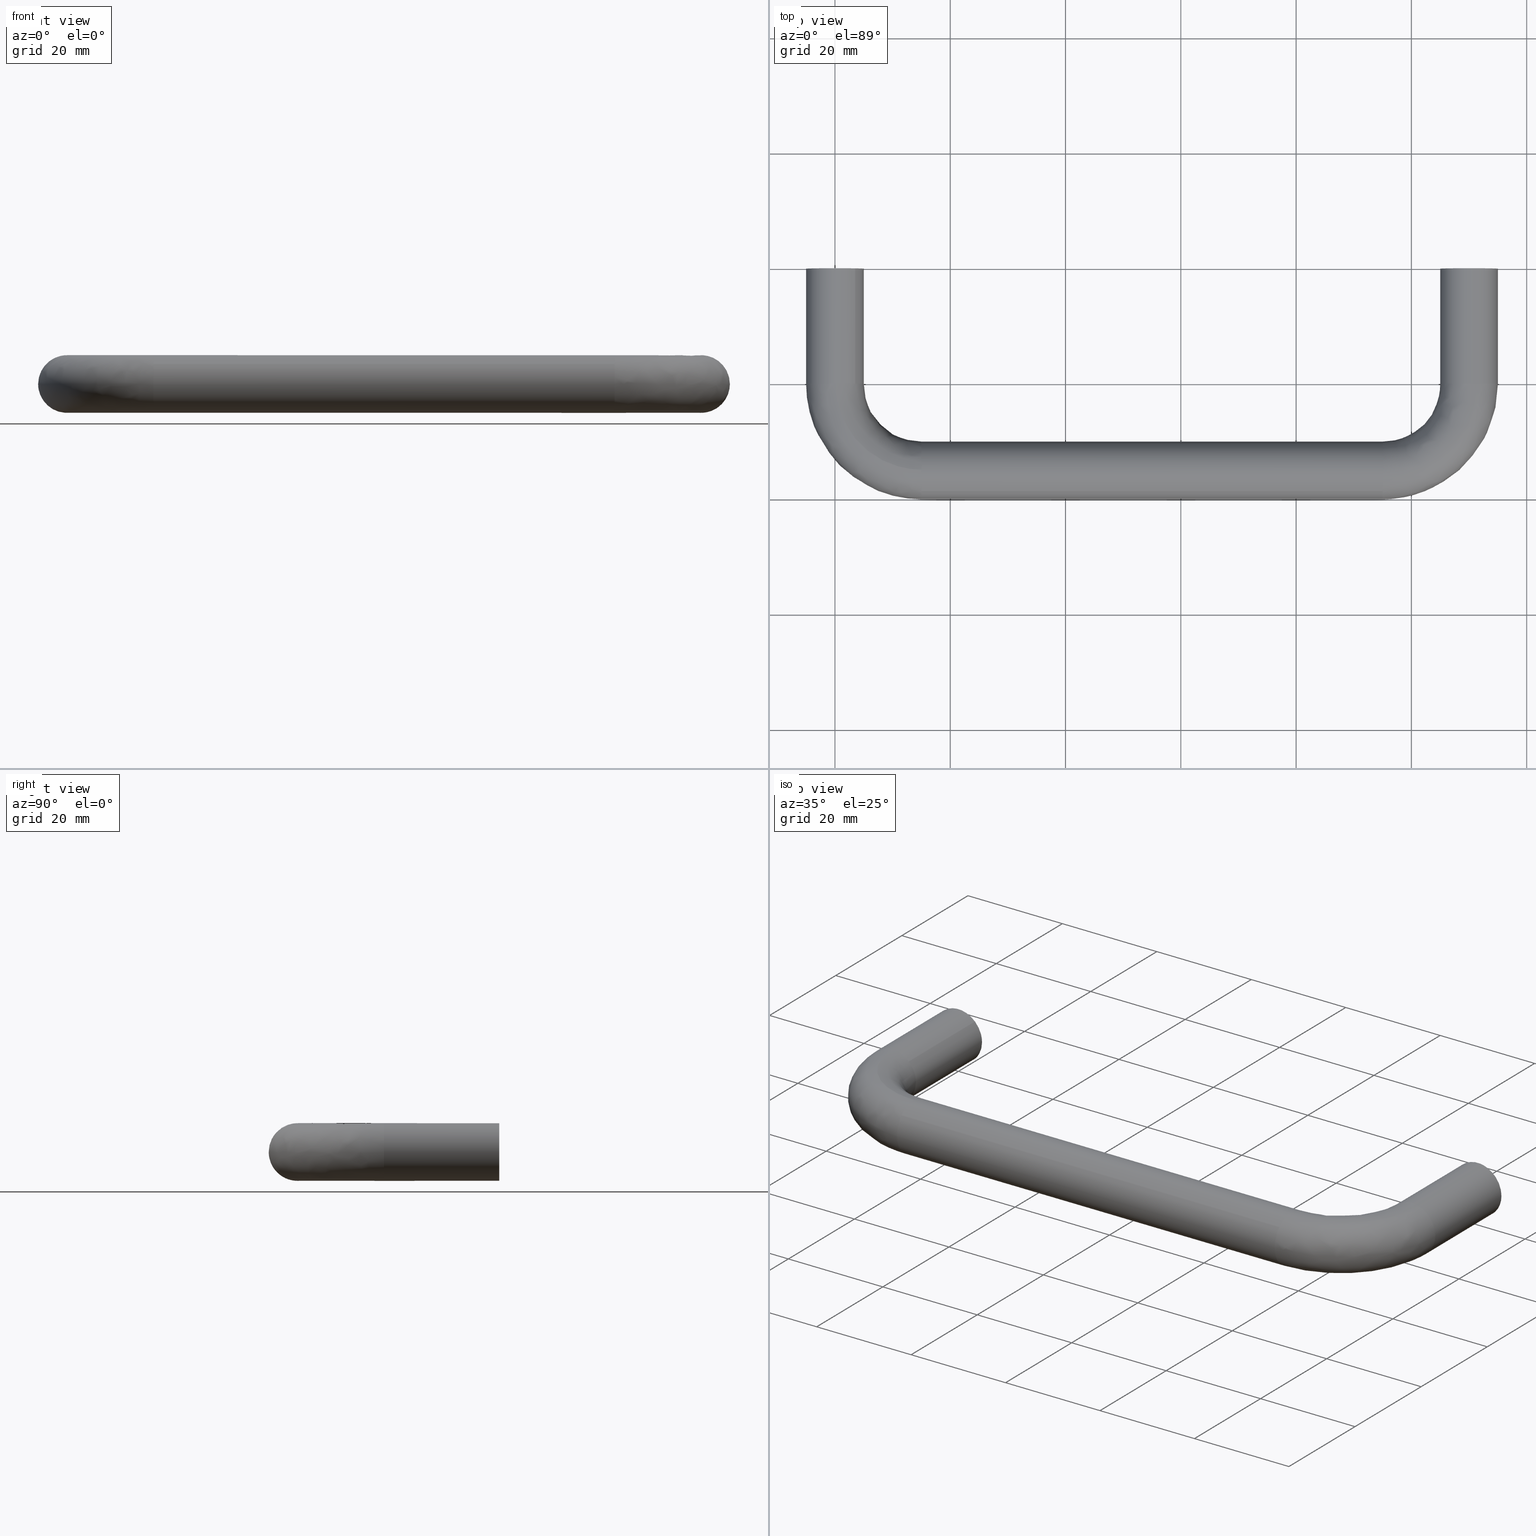
[diagram: canonical four-view strip — front | top / right | iso, engineering-drawing reading convention]
A machine part, canonical four-view strip (front | top / right | iso — engineering-drawing reading convention). The complete STEP part file that produces these views, byte-faithful:
ISO-10303-21;
HEADER;
/****************************************************************
 * Generated by software with PDE/Lib inside                    *
 * PDElib Version 4.4.1-0003, patched  Thursday August 19 11:58 *
 * International Technegroup Inc. (www.iti-oh.com)              *
 ****************************************************************/
FILE_DESCRIPTION((''),'2;1');
FILE_NAME('','2005-10-12T14:18:18',(''),(''),'','CADfix','');
FILE_SCHEMA(('AUTOMOTIVE_DESIGN'));
ENDSEC;
DATA;
#5=APPLICATION_CONTEXT('automotive design');
#6=APPLICATION_PROTOCOL_DEFINITION('Draft International Standard','automotive_design',1998,#5);
#7=PRODUCT_CONTEXT('None',#5,'mechanical');
#8=PRODUCT('pull','','None',(#7));
#9=PRODUCT_RELATED_PRODUCT_CATEGORY('part','description',(#8));
#10=PRODUCT_DEFINITION_FORMATION('None','None',#8);
#11=PRODUCT_DEFINITION_CONTEXT('part definition',#5,'design');
#12=PRODUCT_DEFINITION('None','None',#10,#11);
#18=(NAMED_UNIT(*)PLANE_ANGLE_UNIT()SI_UNIT($,.RADIAN.));
#19=DIMENSIONAL_EXPONENTS(0.0,0.0,0.0,0.0,0.0,0.0,0.0);
#20=PLANE_ANGLE_MEASURE_WITH_UNIT(PLANE_ANGLE_MEASURE(0.017453292500000),#18);
#24=(CONVERSION_BASED_UNIT('DEGREE',#20)NAMED_UNIT(#19)PLANE_ANGLE_UNIT());
#28=(NAMED_UNIT(*)SI_UNIT($,.STERADIAN.)SOLID_ANGLE_UNIT());
#32=(LENGTH_UNIT()NAMED_UNIT(*)SI_UNIT(.MILLI.,.METRE.));
#34=UNCERTAINTY_MEASURE_WITH_UNIT(LENGTH_MEASURE(0.001000000000000),#32,'DISTANCE_ACCURACY_VALUE','');
#36=(GEOMETRIC_REPRESENTATION_CONTEXT(3)GLOBAL_UNCERTAINTY_ASSIGNED_CONTEXT((#34))GLOBAL_UNIT_ASSIGNED_CONTEXT((#24,#28,#32))REPRESENTATION_CONTEXT('None','None'));
#37=AXIS2_PLACEMENT_3D('',#38,#39,#40);
#38=CARTESIAN_POINT('',(0.0,0.0,0.0));
#39=DIRECTION('',(0.0,0.0,1.0));
#40=DIRECTION('',(1.0,0.0,0.0));
#41=ADVANCED_BREP_SHAPE_REPRESENTATION('',(#37,#1387),#36);
#42=PRODUCT_DEFINITION_SHAPE('','',#12);
#43=SHAPE_DEFINITION_REPRESENTATION(#42,#41);
#44=CARTESIAN_POINT('',(-2.990752001199383,-8.199999999999999,0.235377287183537));
#45=CARTESIAN_POINT('',(-2.755374714015846,-8.199999999999999,3.226129288382921));
#46=CARTESIAN_POINT('',(0.235377287183537,-8.199999999999999,2.990752001199383));
#47=CARTESIAN_POINT('',(3.226129288382921,-8.199999999999999,2.755374714015846));
#48=CARTESIAN_POINT('',(2.990752001199383,-8.199999999999999,-0.235377287183537));
#49=CARTESIAN_POINT('',(-2.990752001199383,0.205000000000000,0.235377287183537));
#50=CARTESIAN_POINT('',(-2.755374714015846,0.205000000000000,3.226129288382921));
#51=CARTESIAN_POINT('',(0.235377287183537,0.205000000000000,2.990752001199383));
#52=CARTESIAN_POINT('',(3.226129288382921,0.205000000000000,2.755374714015846));
#53=CARTESIAN_POINT('',(2.990752001199383,0.205000000000000,-0.235377287183537));
#61=(BOUNDED_SURFACE()B_SPLINE_SURFACE(2,1,((#44,#49),(#45,#50),(#46,#51),(#47,#52),(#48,#53)),.UNSPECIFIED.,.F.,.F.,.U.)B_SPLINE_SURFACE_WITH_KNOTS((3,2,3),(2,2),(0.0,4.970562748477140,9.941125496954280),(0.0,8.404999999999999),.UNSPECIFIED.)GEOMETRIC_REPRESENTATION_ITEM()RATIONAL_B_SPLINE_SURFACE(((1.0,1.0),(0.707106781186548,0.707106781186548),(1.0,1.0),(0.707106781186548,0.707106781186548),(1.0,1.0)))REPRESENTATION_ITEM('')SURFACE());
#62=CARTESIAN_POINT('',(0.0,-8.0,3.0));
#63=VERTEX_POINT('',#62);
#64=CARTESIAN_POINT('',(-2.990752001160772,-8.0,0.235377287674147));
#65=VERTEX_POINT('',#64);
#66=CARTESIAN_POINT('',(0.0,-8.0,3.0));
#67=CARTESIAN_POINT('',(-2.773171474061971,-8.0,3.000000000000000));
#68=CARTESIAN_POINT('',(-2.990752001160772,-7.999999999999999,0.235377287674147));
#76=(BOUNDED_CURVE()B_SPLINE_CURVE(2,(#66,#67,#68),.UNSPECIFIED.,.F.,.U.)B_SPLINE_CURVE_WITH_KNOTS((3,3),(0.0,0.236331300576525),.UNSPECIFIED.)CURVE()GEOMETRIC_REPRESENTATION_ITEM()RATIONAL_B_SPLINE_CURVE((1.0,0.723120658671088,0.969723356054443))REPRESENTATION_ITEM(''));
#77=EDGE_CURVE('',#63,#65,#76,.T.);
#78=ORIENTED_EDGE('',*,*,#77,.T.);
#79=CARTESIAN_POINT('',(-2.990752001160772,-4.163336E-017,0.235377287674147));
#80=VERTEX_POINT('',#79);
#81=CARTESIAN_POINT('',(-2.990752001160772,-8.0,0.235377287674147));
#82=CARTESIAN_POINT('',(-2.990752001160772,-4.163336E-017,0.235377287674147));
#83=QUASI_UNIFORM_CURVE('',1,(#81,#82),.UNSPECIFIED.,.F.,.U.);
#84=EDGE_CURVE('',#65,#80,#83,.T.);
#85=ORIENTED_EDGE('',*,*,#84,.T.);
#86=CARTESIAN_POINT('',(0.0,0.0,3.0));
#87=VERTEX_POINT('',#86);
#88=CARTESIAN_POINT('',(0.0,0.0,3.0));
#89=CARTESIAN_POINT('',(-2.773171474061971,0.0,3.000000000000000));
#90=CARTESIAN_POINT('',(-2.990752001160772,-4.163336E-017,0.235377287674147));
#98=(BOUNDED_CURVE()B_SPLINE_CURVE(2,(#88,#89,#90),.UNSPECIFIED.,.F.,.U.)B_SPLINE_CURVE_WITH_KNOTS((3,3),(0.0,0.236331300576525),.UNSPECIFIED.)CURVE()GEOMETRIC_REPRESENTATION_ITEM()RATIONAL_B_SPLINE_CURVE((1.0,0.723120658671088,0.969723356054443))REPRESENTATION_ITEM(''));
#99=EDGE_CURVE('',#87,#80,#98,.T.);
#100=ORIENTED_EDGE('',*,*,#99,.F.);
#101=CARTESIAN_POINT('',(2.990752001160772,-4.163336E-017,-0.235377287674146));
#102=VERTEX_POINT('',#101);
#103=CARTESIAN_POINT('',(2.990752001160772,-4.163336E-017,-0.235377287674146));
#104=CARTESIAN_POINT('',(3.0,0.0,-0.117870321515896));
#105=CARTESIAN_POINT('',(3.0,0.0,0.0));
#106=CARTESIAN_POINT('',(3.0,0.0,3.0));
#107=CARTESIAN_POINT('',(0.0,0.0,3.0));
#115=(BOUNDED_CURVE()B_SPLINE_CURVE(2,(#103,#104,#105,#106,#107),.UNSPECIFIED.,.F.,.U.)B_SPLINE_CURVE_WITH_KNOTS((3,2,3),(0.736331300576525,0.750000000000000,1.0),.UNSPECIFIED.)CURVE()GEOMETRIC_REPRESENTATION_ITEM()RATIONAL_B_SPLINE_CURVE((0.969723356054443,0.983986122515459,1.0,0.707106781186548,1.0))REPRESENTATION_ITEM(''));
#116=EDGE_CURVE('',#102,#87,#115,.T.);
#117=ORIENTED_EDGE('',*,*,#116,.F.);
#118=CARTESIAN_POINT('',(2.990752001160772,-8.0,-0.235377287674146));
#119=VERTEX_POINT('',#118);
#120=CARTESIAN_POINT('',(2.990752001160772,-8.0,-0.235377287674146));
#121=CARTESIAN_POINT('',(2.990752001160772,-4.163336E-017,-0.235377287674146));
#122=QUASI_UNIFORM_CURVE('',1,(#120,#121),.UNSPECIFIED.,.F.,.U.);
#123=EDGE_CURVE('',#119,#102,#122,.T.);
#124=ORIENTED_EDGE('',*,*,#123,.F.);
#125=CARTESIAN_POINT('',(2.990752001160772,-8.0,-0.235377287674146));
#126=CARTESIAN_POINT('',(3.0,-8.0,-0.117870321515896));
#127=CARTESIAN_POINT('',(3.0,-8.0,0.0));
#128=CARTESIAN_POINT('',(3.0,-8.0,3.0));
#129=CARTESIAN_POINT('',(0.0,-8.0,3.0));
#137=(BOUNDED_CURVE()B_SPLINE_CURVE(2,(#125,#126,#127,#128,#129),.UNSPECIFIED.,.F.,.U.)B_SPLINE_CURVE_WITH_KNOTS((3,2,3),(0.736331300576525,0.750000000000000,1.0),.UNSPECIFIED.)CURVE()GEOMETRIC_REPRESENTATION_ITEM()RATIONAL_B_SPLINE_CURVE((0.969723356054443,0.983986122515459,1.0,0.707106781186548,1.0))REPRESENTATION_ITEM(''));
#138=EDGE_CURVE('',#119,#63,#137,.T.);
#139=ORIENTED_EDGE('',*,*,#138,.T.);
#140=EDGE_LOOP('',(#78,#85,#100,#117,#124,#139));
#141=FACE_OUTER_BOUND('',#140,.T.);
#142=ADVANCED_FACE('',(#141),#61,.F.);
#143=CARTESIAN_POINT('',(2.990752001199383,-8.199999999999999,-0.235377287183537));
#144=CARTESIAN_POINT('',(2.755374714015846,-8.199999999999999,-3.226129288382921));
#145=CARTESIAN_POINT('',(-0.235377287183537,-8.199999999999999,-2.990752001199383));
#146=CARTESIAN_POINT('',(-3.226129288382921,-8.199999999999999,-2.755374714015846));
#147=CARTESIAN_POINT('',(-2.990752001199383,-8.199999999999999,0.235377287183537));
#148=CARTESIAN_POINT('',(2.990752001199383,0.205000000000000,-0.235377287183537));
#149=CARTESIAN_POINT('',(2.755374714015846,0.205000000000000,-3.226129288382921));
#150=CARTESIAN_POINT('',(-0.235377287183537,0.205000000000000,-2.990752001199383));
#151=CARTESIAN_POINT('',(-3.226129288382921,0.205000000000000,-2.755374714015846));
#152=CARTESIAN_POINT('',(-2.990752001199383,0.205000000000000,0.235377287183537));
#160=(BOUNDED_SURFACE()B_SPLINE_SURFACE(2,1,((#143,#148),(#144,#149),(#145,#150),(#146,#151),(#147,#152)),.UNSPECIFIED.,.F.,.F.,.U.)B_SPLINE_SURFACE_WITH_KNOTS((3,2,3),(2,2),(0.0,4.970562748477140,9.941125496954280),(0.0,8.404999999999999),.UNSPECIFIED.)GEOMETRIC_REPRESENTATION_ITEM()RATIONAL_B_SPLINE_SURFACE(((1.0,1.0),(0.707106781186548,0.707106781186548),(1.0,1.0),(0.707106781186548,0.707106781186548),(1.0,1.0)))REPRESENTATION_ITEM('')SURFACE());
#161=CARTESIAN_POINT('',(0.0,-8.0,-3.0));
#162=VERTEX_POINT('',#161);
#163=CARTESIAN_POINT('',(-2.990752001160772,-7.999999999999999,0.235377287674147));
#164=CARTESIAN_POINT('',(-3.0,-8.0,0.117870321515896));
#165=CARTESIAN_POINT('',(-3.0,-8.0,0.0));
#166=CARTESIAN_POINT('',(-3.0,-8.0,-3.0));
#167=CARTESIAN_POINT('',(0.0,-8.0,-3.0));
#175=(BOUNDED_CURVE()B_SPLINE_CURVE(2,(#163,#164,#165,#166,#167),.UNSPECIFIED.,.F.,.U.)B_SPLINE_CURVE_WITH_KNOTS((3,2,3),(0.236331300576525,0.250000000000000,0.500000000000000),.UNSPECIFIED.)CURVE()GEOMETRIC_REPRESENTATION_ITEM()RATIONAL_B_SPLINE_CURVE((0.969723356054443,0.983986122515459,1.0,0.707106781186548,1.0))REPRESENTATION_ITEM(''));
#176=EDGE_CURVE('',#65,#162,#175,.T.);
#177=ORIENTED_EDGE('',*,*,#176,.T.);
#178=CARTESIAN_POINT('',(0.0,-8.0,-3.0));
#179=CARTESIAN_POINT('',(2.773171474061961,-8.0,-3.0));
#180=CARTESIAN_POINT('',(2.990752001160772,-8.0,-0.235377287674146));
#188=(BOUNDED_CURVE()B_SPLINE_CURVE(2,(#178,#179,#180),.UNSPECIFIED.,.F.,.U.)B_SPLINE_CURVE_WITH_KNOTS((3,3),(0.500000000000000,0.736331300576524),.UNSPECIFIED.)CURVE()GEOMETRIC_REPRESENTATION_ITEM()RATIONAL_B_SPLINE_CURVE((1.0,0.723120658671089,0.969723356054442))REPRESENTATION_ITEM(''));
#189=EDGE_CURVE('',#162,#119,#188,.T.);
#190=ORIENTED_EDGE('',*,*,#189,.T.);
#191=ORIENTED_EDGE('',*,*,#123,.T.);
#192=CARTESIAN_POINT('',(0.0,0.0,-3.0));
#193=VERTEX_POINT('',#192);
#194=CARTESIAN_POINT('',(0.0,0.0,-3.0));
#195=CARTESIAN_POINT('',(2.773171474061961,0.0,-3.0));
#196=CARTESIAN_POINT('',(2.990752001160772,-4.163336E-017,-0.235377287674146));
#204=(BOUNDED_CURVE()B_SPLINE_CURVE(2,(#194,#195,#196),.UNSPECIFIED.,.F.,.U.)B_SPLINE_CURVE_WITH_KNOTS((3,3),(0.500000000000000,0.736331300576524),.UNSPECIFIED.)CURVE()GEOMETRIC_REPRESENTATION_ITEM()RATIONAL_B_SPLINE_CURVE((1.0,0.723120658671089,0.969723356054442))REPRESENTATION_ITEM(''));
#205=EDGE_CURVE('',#193,#102,#204,.T.);
#206=ORIENTED_EDGE('',*,*,#205,.F.);
#207=CARTESIAN_POINT('',(-2.990752001160772,-4.163336E-017,0.235377287674147));
#208=CARTESIAN_POINT('',(-3.0,0.0,0.117870321515896));
#209=CARTESIAN_POINT('',(-3.0,0.0,0.0));
#210=CARTESIAN_POINT('',(-3.0,0.0,-3.0));
#211=CARTESIAN_POINT('',(0.0,0.0,-3.0));
#219=(BOUNDED_CURVE()B_SPLINE_CURVE(2,(#207,#208,#209,#210,#211),.UNSPECIFIED.,.F.,.U.)B_SPLINE_CURVE_WITH_KNOTS((3,2,3),(0.236331300576525,0.250000000000000,0.500000000000000),.UNSPECIFIED.)CURVE()GEOMETRIC_REPRESENTATION_ITEM()RATIONAL_B_SPLINE_CURVE((0.969723356054443,0.983986122515459,1.0,0.707106781186548,1.0))REPRESENTATION_ITEM(''));
#220=EDGE_CURVE('',#80,#193,#219,.T.);
#221=ORIENTED_EDGE('',*,*,#220,.F.);
#222=ORIENTED_EDGE('',*,*,#84,.F.);
#223=EDGE_LOOP('',(#177,#190,#191,#206,#221,#222));
#224=FACE_OUTER_BOUND('',#223,.T.);
#225=ADVANCED_FACE('',(#224),#160,.F.);
#226=CARTESIAN_POINT('',(107.009247998800600,-8.199999999999999,0.235377287183537));
#227=CARTESIAN_POINT('',(107.244625285984160,-8.199999999999999,3.226129288382921));
#228=CARTESIAN_POINT('',(110.235377287183500,-8.199999999999999,2.990752001199383));
#229=CARTESIAN_POINT('',(113.226129288382920,-8.199999999999999,2.755374714015846));
#230=CARTESIAN_POINT('',(112.990752001199400,-8.199999999999999,-0.235377287183537));
#231=CARTESIAN_POINT('',(107.009247998800600,0.205000000000000,0.235377287183537));
#232=CARTESIAN_POINT('',(107.244625285984160,0.205000000000000,3.226129288382921));
#233=CARTESIAN_POINT('',(110.235377287183500,0.205000000000000,2.990752001199383));
#234=CARTESIAN_POINT('',(113.226129288382920,0.205000000000000,2.755374714015846));
#235=CARTESIAN_POINT('',(112.990752001199400,0.205000000000000,-0.235377287183537));
#243=(BOUNDED_SURFACE()B_SPLINE_SURFACE(2,1,((#226,#231),(#227,#232),(#228,#233),(#229,#234),(#230,#235)),.UNSPECIFIED.,.F.,.F.,.U.)B_SPLINE_SURFACE_WITH_KNOTS((3,2,3),(2,2),(0.0,4.970562748477149,9.941125496954298),(0.0,8.404999999999999),.UNSPECIFIED.)GEOMETRIC_REPRESENTATION_ITEM()RATIONAL_B_SPLINE_SURFACE(((1.0,1.0),(0.707106781186548,0.707106781186548),(1.0,1.0),(0.707106781186548,0.707106781186548),(1.0,1.0)))REPRESENTATION_ITEM('')SURFACE());
#244=CARTESIAN_POINT('',(110.0,-8.0,3.0));
#245=VERTEX_POINT('',#244);
#246=CARTESIAN_POINT('',(107.009247998839200,-8.0,0.235377287674146));
#247=VERTEX_POINT('',#246);
#248=CARTESIAN_POINT('',(110.0,-8.0,3.0));
#249=CARTESIAN_POINT('',(107.226828525938050,-8.0,3.000000000000001));
#250=CARTESIAN_POINT('',(107.009247998839260,-8.0,0.235377287674146));
#258=(BOUNDED_CURVE()B_SPLINE_CURVE(2,(#248,#249,#250),.UNSPECIFIED.,.F.,.U.)B_SPLINE_CURVE_WITH_KNOTS((3,3),(0.0,0.236331300576525),.UNSPECIFIED.)CURVE()GEOMETRIC_REPRESENTATION_ITEM()RATIONAL_B_SPLINE_CURVE((1.0,0.723120658671088,0.969723356054443))REPRESENTATION_ITEM(''));
#259=EDGE_CURVE('',#245,#247,#258,.T.);
#260=ORIENTED_EDGE('',*,*,#259,.T.);
#261=CARTESIAN_POINT('',(107.009247998839200,-4.163336E-017,0.235377287674147));
#262=VERTEX_POINT('',#261);
#263=CARTESIAN_POINT('',(107.009247998839200,-8.0,0.235377287674146));
#264=CARTESIAN_POINT('',(107.009247998839200,-4.163336E-017,0.235377287674147));
#265=QUASI_UNIFORM_CURVE('',1,(#263,#264),.UNSPECIFIED.,.F.,.U.);
#266=EDGE_CURVE('',#247,#262,#265,.T.);
#267=ORIENTED_EDGE('',*,*,#266,.T.);
#268=CARTESIAN_POINT('',(110.0,0.0,3.0));
#269=VERTEX_POINT('',#268);
#270=CARTESIAN_POINT('',(110.0,0.0,3.0));
#271=CARTESIAN_POINT('',(107.226828525938030,0.0,3.000000000000000));
#272=CARTESIAN_POINT('',(107.009247998839270,-4.163336E-017,0.235377287674147));
#280=(BOUNDED_CURVE()B_SPLINE_CURVE(2,(#270,#271,#272),.UNSPECIFIED.,.F.,.U.)B_SPLINE_CURVE_WITH_KNOTS((3,3),(0.0,0.236331300576525),.UNSPECIFIED.)CURVE()GEOMETRIC_REPRESENTATION_ITEM()RATIONAL_B_SPLINE_CURVE((1.0,0.723120658671088,0.969723356054443))REPRESENTATION_ITEM(''));
#281=EDGE_CURVE('',#269,#262,#280,.T.);
#282=ORIENTED_EDGE('',*,*,#281,.F.);
#283=CARTESIAN_POINT('',(112.990752001160800,-4.163336E-017,-0.235377287674146));
#284=VERTEX_POINT('',#283);
#285=CARTESIAN_POINT('',(112.990752001160770,-4.163336E-017,-0.235377287674146));
#286=CARTESIAN_POINT('',(113.0,0.0,-0.117870321515896));
#287=CARTESIAN_POINT('',(113.0,0.0,0.0));
#288=CARTESIAN_POINT('',(113.0,0.0,3.0));
#289=CARTESIAN_POINT('',(110.0,0.0,3.0));
#297=(BOUNDED_CURVE()B_SPLINE_CURVE(2,(#285,#286,#287,#288,#289),.UNSPECIFIED.,.F.,.U.)B_SPLINE_CURVE_WITH_KNOTS((3,2,3),(0.736331300576525,0.750000000000000,1.0),.UNSPECIFIED.)CURVE()GEOMETRIC_REPRESENTATION_ITEM()RATIONAL_B_SPLINE_CURVE((0.969723356054443,0.983986122515459,1.0,0.707106781186548,1.0))REPRESENTATION_ITEM(''));
#298=EDGE_CURVE('',#284,#269,#297,.T.);
#299=ORIENTED_EDGE('',*,*,#298,.F.);
#300=CARTESIAN_POINT('',(112.990752001160800,-8.0,-0.235377287674146));
#301=VERTEX_POINT('',#300);
#302=CARTESIAN_POINT('',(112.990752001160800,-8.0,-0.235377287674146));
#303=CARTESIAN_POINT('',(112.990752001160800,-4.163336E-017,-0.235377287674146));
#304=QUASI_UNIFORM_CURVE('',1,(#302,#303),.UNSPECIFIED.,.F.,.U.);
#305=EDGE_CURVE('',#301,#284,#304,.T.);
#306=ORIENTED_EDGE('',*,*,#305,.F.);
#307=CARTESIAN_POINT('',(112.990752001160770,-8.0,-0.235377287674146));
#308=CARTESIAN_POINT('',(113.0,-8.0,-0.117870321515896));
#309=CARTESIAN_POINT('',(113.0,-8.0,0.0));
#310=CARTESIAN_POINT('',(113.0,-8.0,3.0));
#311=CARTESIAN_POINT('',(110.0,-8.0,3.0));
#319=(BOUNDED_CURVE()B_SPLINE_CURVE(2,(#307,#308,#309,#310,#311),.UNSPECIFIED.,.F.,.U.)B_SPLINE_CURVE_WITH_KNOTS((3,2,3),(0.736331300576525,0.750000000000000,1.0),.UNSPECIFIED.)CURVE()GEOMETRIC_REPRESENTATION_ITEM()RATIONAL_B_SPLINE_CURVE((0.969723356054443,0.983986122515459,1.0,0.707106781186548,1.0))REPRESENTATION_ITEM(''));
#320=EDGE_CURVE('',#301,#245,#319,.T.);
#321=ORIENTED_EDGE('',*,*,#320,.T.);
#322=EDGE_LOOP('',(#260,#267,#282,#299,#306,#321));
#323=FACE_OUTER_BOUND('',#322,.T.);
#324=ADVANCED_FACE('',(#323),#243,.F.);
#325=CARTESIAN_POINT('',(112.990752001199400,-8.199999999999999,-0.235377287183537));
#326=CARTESIAN_POINT('',(112.755374714015830,-8.199999999999999,-3.226129288382921));
#327=CARTESIAN_POINT('',(109.764622712816500,-8.199999999999999,-2.990752001199383));
#328=CARTESIAN_POINT('',(106.773870711617090,-8.199999999999999,-2.755374714015846));
#329=CARTESIAN_POINT('',(107.009247998800600,-8.199999999999999,0.235377287183537));
#330=CARTESIAN_POINT('',(112.990752001199400,0.205000000000000,-0.235377287183537));
#331=CARTESIAN_POINT('',(112.755374714015830,0.205000000000000,-3.226129288382921));
#332=CARTESIAN_POINT('',(109.764622712816500,0.205000000000000,-2.990752001199383));
#333=CARTESIAN_POINT('',(106.773870711617090,0.205000000000000,-2.755374714015846));
#334=CARTESIAN_POINT('',(107.009247998800600,0.205000000000000,0.235377287183537));
#342=(BOUNDED_SURFACE()B_SPLINE_SURFACE(2,1,((#325,#330),(#326,#331),(#327,#332),(#328,#333),(#329,#334)),.UNSPECIFIED.,.F.,.F.,.U.)B_SPLINE_SURFACE_WITH_KNOTS((3,2,3),(2,2),(0.0,4.970562748477149,9.941125496954298),(0.0,8.404999999999999),.UNSPECIFIED.)GEOMETRIC_REPRESENTATION_ITEM()RATIONAL_B_SPLINE_SURFACE(((1.0,1.0),(0.707106781186548,0.707106781186548),(1.0,1.0),(0.707106781186548,0.707106781186548),(1.0,1.0)))REPRESENTATION_ITEM('')SURFACE());
#343=CARTESIAN_POINT('',(110.0,-8.0,-3.0));
#344=VERTEX_POINT('',#343);
#345=CARTESIAN_POINT('',(107.009247998839240,-8.0,0.235377287674146));
#346=CARTESIAN_POINT('',(107.000000000000030,-8.0,0.117870321515896));
#347=CARTESIAN_POINT('',(107.0,-8.0,0.0));
#348=CARTESIAN_POINT('',(107.000000000000010,-8.0,-3.0));
#349=CARTESIAN_POINT('',(110.0,-8.0,-3.0));
#357=(BOUNDED_CURVE()B_SPLINE_CURVE(2,(#345,#346,#347,#348,#349),.UNSPECIFIED.,.F.,.U.)B_SPLINE_CURVE_WITH_KNOTS((3,2,3),(0.236331300576525,0.250000000000000,0.500000000000000),.UNSPECIFIED.)CURVE()GEOMETRIC_REPRESENTATION_ITEM()RATIONAL_B_SPLINE_CURVE((0.969723356054443,0.983986122515459,1.0,0.707106781186548,1.0))REPRESENTATION_ITEM(''));
#358=EDGE_CURVE('',#247,#344,#357,.T.);
#359=ORIENTED_EDGE('',*,*,#358,.T.);
#360=CARTESIAN_POINT('',(110.0,-8.0,-3.0));
#361=CARTESIAN_POINT('',(112.773171474061950,-8.0,-3.0));
#362=CARTESIAN_POINT('',(112.990752001160730,-8.0,-0.235377287674146));
#370=(BOUNDED_CURVE()B_SPLINE_CURVE(2,(#360,#361,#362),.UNSPECIFIED.,.F.,.U.)B_SPLINE_CURVE_WITH_KNOTS((3,3),(0.500000000000000,0.736331300576524),.UNSPECIFIED.)CURVE()GEOMETRIC_REPRESENTATION_ITEM()RATIONAL_B_SPLINE_CURVE((1.0,0.723120658671089,0.969723356054442))REPRESENTATION_ITEM(''));
#371=EDGE_CURVE('',#344,#301,#370,.T.);
#372=ORIENTED_EDGE('',*,*,#371,.T.);
#373=ORIENTED_EDGE('',*,*,#305,.T.);
#374=CARTESIAN_POINT('',(110.0,0.0,-3.0));
#375=VERTEX_POINT('',#374);
#376=CARTESIAN_POINT('',(110.0,0.0,-3.0));
#377=CARTESIAN_POINT('',(112.773171474061950,0.0,-3.0));
#378=CARTESIAN_POINT('',(112.990752001160730,-4.163336E-017,-0.235377287674146));
#386=(BOUNDED_CURVE()B_SPLINE_CURVE(2,(#376,#377,#378),.UNSPECIFIED.,.F.,.U.)B_SPLINE_CURVE_WITH_KNOTS((3,3),(0.500000000000000,0.736331300576524),.UNSPECIFIED.)CURVE()GEOMETRIC_REPRESENTATION_ITEM()RATIONAL_B_SPLINE_CURVE((1.0,0.723120658671089,0.969723356054442))REPRESENTATION_ITEM(''));
#387=EDGE_CURVE('',#375,#284,#386,.T.);
#388=ORIENTED_EDGE('',*,*,#387,.F.);
#389=CARTESIAN_POINT('',(107.009247998839270,-4.163336E-017,0.235377287674147));
#390=CARTESIAN_POINT('',(107.000000000000040,0.0,0.117870321515896));
#391=CARTESIAN_POINT('',(107.0,0.0,0.0));
#392=CARTESIAN_POINT('',(107.000000000000010,0.0,-3.0));
#393=CARTESIAN_POINT('',(110.0,0.0,-3.0));
#401=(BOUNDED_CURVE()B_SPLINE_CURVE(2,(#389,#390,#391,#392,#393),.UNSPECIFIED.,.F.,.U.)B_SPLINE_CURVE_WITH_KNOTS((3,2,3),(0.236331300576525,0.250000000000000,0.500000000000000),.UNSPECIFIED.)CURVE()GEOMETRIC_REPRESENTATION_ITEM()RATIONAL_B_SPLINE_CURVE((0.969723356054443,0.983986122515459,1.0,0.707106781186548,1.0))REPRESENTATION_ITEM(''));
#402=EDGE_CURVE('',#262,#375,#401,.T.);
#403=ORIENTED_EDGE('',*,*,#402,.F.);
#404=ORIENTED_EDGE('',*,*,#266,.F.);
#405=EDGE_LOOP('',(#359,#372,#373,#388,#403,#404));
#406=FACE_OUTER_BOUND('',#405,.T.);
#407=ADVANCED_FACE('',(#406),#342,.F.);
#408=CARTESIAN_POINT('',(105.350677901122200,-20.500000000309932,1.839511897457181));
#409=CARTESIAN_POINT('',(106.709702162921660,-20.500000000309928,5.274413048153543));
#410=CARTESIAN_POINT('',(110.392295478639200,-20.500000000309932,4.984586668665638));
#411=CARTESIAN_POINT('',(105.350677901122200,0.512500000007762,1.839511897457181));
#412=CARTESIAN_POINT('',(106.709702162921660,0.512500000007762,5.274413048153543));
#413=CARTESIAN_POINT('',(110.392295478639200,0.512500000007762,4.984586668665638));
#421=(BOUNDED_SURFACE()B_SPLINE_SURFACE(2,1,((#408,#411),(#409,#412),(#410,#413)),.UNSPECIFIED.,.F.,.F.,.U.)B_SPLINE_SURFACE_WITH_KNOTS((3,3),(2,2),(0.0,6.582243619433233),(0.0,21.012500000317690),.UNSPECIFIED.)GEOMETRIC_REPRESENTATION_ITEM()RATIONAL_B_SPLINE_SURFACE(((0.906274169979695,0.906274169979695),(0.765685424949238,0.765685424949238),(1.0,1.0)))REPRESENTATION_ITEM('')SURFACE());
#422=CARTESIAN_POINT('',(110.392295478934200,-20.0,4.984586668642422));
#423=VERTEX_POINT('',#422);
#424=CARTESIAN_POINT('',(105.350677901148300,-20.0,1.839511897523061));
#425=VERTEX_POINT('',#424);
#426=CARTESIAN_POINT('',(110.392295478934230,-20.000000000000004,4.984586668642422));
#427=CARTESIAN_POINT('',(110.196450535334660,-20.000000000000004,5.0));
#428=CARTESIAN_POINT('',(110.0,-20.0,5.0));
#429=CARTESIAN_POINT('',(106.601130191421550,-20.000000000000004,4.999999999999999));
#430=CARTESIAN_POINT('',(105.350677901148260,-19.999999999999996,1.839511897523061));
#438=(BOUNDED_CURVE()B_SPLINE_CURVE(2,(#426,#427,#428,#429,#430),.UNSPECIFIED.,.F.,.U.)B_SPLINE_CURVE_WITH_KNOTS((3,2,3),(0.736331300612476,0.750000000000000,0.937532549935001),.UNSPECIFIED.)CURVE()GEOMETRIC_REPRESENTATION_ITEM()RATIONAL_B_SPLINE_CURVE((0.969723356129471,0.983986122557579,1.0,0.780291951268972,0.890203187496129))REPRESENTATION_ITEM(''));
#439=EDGE_CURVE('',#423,#425,#438,.T.);
#440=ORIENTED_EDGE('',*,*,#439,.F.);
#441=CARTESIAN_POINT('',(110.392295478934200,1.337819E-014,4.984586668642422));
#442=VERTEX_POINT('',#441);
#443=CARTESIAN_POINT('',(110.392295478934200,-20.0,4.984586668642422));
#444=CARTESIAN_POINT('',(110.392295478934200,1.337819E-014,4.984586668642422));
#445=QUASI_UNIFORM_CURVE('',1,(#443,#444),.UNSPECIFIED.,.F.,.U.);
#446=EDGE_CURVE('',#423,#442,#445,.T.);
#447=ORIENTED_EDGE('',*,*,#446,.T.);
#448=CARTESIAN_POINT('',(105.350677901148300,1.337036E-014,1.839511897523058));
#449=VERTEX_POINT('',#448);
#450=CARTESIAN_POINT('',(110.392295478934230,1.337819E-014,4.984586668642423));
#451=CARTESIAN_POINT('',(110.196450535334710,1.387779E-014,4.999999999999999));
#452=CARTESIAN_POINT('',(110.0,1.387779E-014,5.0));
#453=CARTESIAN_POINT('',(106.601130191421550,1.387779E-014,5.0));
#454=CARTESIAN_POINT('',(105.350677901148250,1.337036E-014,1.839511897523058));
#462=(BOUNDED_CURVE()B_SPLINE_CURVE(2,(#450,#451,#452,#453,#454),.UNSPECIFIED.,.F.,.U.)B_SPLINE_CURVE_WITH_KNOTS((3,2,3),(0.736331300612477,0.750000000000000,0.937532549935001),.UNSPECIFIED.)CURVE()GEOMETRIC_REPRESENTATION_ITEM()RATIONAL_B_SPLINE_CURVE((0.969723356129472,0.983986122557579,1.0,0.780291951268972,0.890203187496130))REPRESENTATION_ITEM(''));
#463=EDGE_CURVE('',#442,#449,#462,.T.);
#464=ORIENTED_EDGE('',*,*,#463,.T.);
#465=CARTESIAN_POINT('',(105.350677901148300,-20.0,1.839511897523061));
#466=CARTESIAN_POINT('',(105.350677901148300,1.337036E-014,1.839511897523058));
#467=QUASI_UNIFORM_CURVE('',1,(#465,#466),.UNSPECIFIED.,.F.,.U.);
#468=EDGE_CURVE('',#425,#449,#467,.T.);
#469=ORIENTED_EDGE('',*,*,#468,.F.);
#470=EDGE_LOOP('',(#440,#447,#464,#469));
#471=FACE_OUTER_BOUND('',#470,.T.);
#472=ADVANCED_FACE('',(#471),#421,.T.);
#473=CARTESIAN_POINT('',(110.392295478639200,-20.500000000309932,4.984586668665638));
#474=CARTESIAN_POINT('',(115.376882147304870,-20.500000000309932,4.592291190026410));
#475=CARTESIAN_POINT('',(114.984586668665600,-20.500000000309932,-0.392295478639228));
#476=CARTESIAN_POINT('',(114.592291190026400,-20.500000000309932,-5.376882147304866));
#477=CARTESIAN_POINT('',(109.607704521360800,-20.500000000309932,-4.984586668665638));
#478=CARTESIAN_POINT('',(104.623117852695130,-20.500000000309932,-4.592291190026410));
#479=CARTESIAN_POINT('',(105.015413331334400,-20.500000000309932,0.392295478639228));
#480=CARTESIAN_POINT('',(105.074344391552340,-20.500000000309928,1.141085595088861));
#481=CARTESIAN_POINT('',(105.350677901122200,-20.500000000309932,1.839511897457181));
#482=CARTESIAN_POINT('',(110.392295478639200,0.512500000007762,4.984586668665638));
#483=CARTESIAN_POINT('',(115.376882147304870,0.512500000007762,4.592291190026410));
#484=CARTESIAN_POINT('',(114.984586668665600,0.512500000007762,-0.392295478639228));
#485=CARTESIAN_POINT('',(114.592291190026400,0.512500000007762,-5.376882147304866));
#486=CARTESIAN_POINT('',(109.607704521360800,0.512500000007762,-4.984586668665638));
#487=CARTESIAN_POINT('',(104.623117852695130,0.512500000007762,-4.592291190026410));
#488=CARTESIAN_POINT('',(105.015413331334400,0.512500000007762,0.392295478639228));
#489=CARTESIAN_POINT('',(105.074344391552340,0.512500000007762,1.141085595088861));
#490=CARTESIAN_POINT('',(105.350677901122200,0.512500000007762,1.839511897457181));
#498=(BOUNDED_SURFACE()B_SPLINE_SURFACE(2,1,((#473,#482),(#474,#483),(#475,#484),(#476,#485),(#477,#486),(#478,#487),(#479,#488),(#480,#489),(#481,#490)),.UNSPECIFIED.,.F.,.F.,.U.)B_SPLINE_SURFACE_WITH_KNOTS((3,2,2,2,3),(2,2),(0.0,8.284271247461913,16.568542494923829,24.852813742385742,26.509667991878121),(0.0,21.012500000317690),.UNSPECIFIED.)GEOMETRIC_REPRESENTATION_ITEM()RATIONAL_B_SPLINE_SURFACE(((1.0,1.0),(0.707106781186548,0.707106781186548),(1.0,1.0),(0.707106781186548,0.707106781186548),(1.0,1.0),(0.707106781186548,0.707106781186548),(1.0,1.0),(0.941421356237310,0.941421356237310),(0.906274169979695,0.906274169979695)))REPRESENTATION_ITEM('')SURFACE());
#499=CARTESIAN_POINT('',(105.0,-20.0,0.0));
#500=VERTEX_POINT('',#499);
#501=CARTESIAN_POINT('',(105.350677901148260,-20.0,1.839511897523061));
#502=CARTESIAN_POINT('',(105.000000000000010,-20.0,0.953181932756090));
#503=CARTESIAN_POINT('',(105.0,-20.0,0.0));
#511=(BOUNDED_CURVE()B_SPLINE_CURVE(2,(#501,#502,#503),.UNSPECIFIED.,.F.,.U.)B_SPLINE_CURVE_WITH_KNOTS((3,3),(0.937532549935002,1.0),.UNSPECIFIED.)CURVE()GEOMETRIC_REPRESENTATION_ITEM()RATIONAL_B_SPLINE_CURVE((0.890203187496130,0.926814829917576,1.0))REPRESENTATION_ITEM(''));
#512=EDGE_CURVE('',#425,#500,#511,.T.);
#513=ORIENTED_EDGE('',*,*,#512,.F.);
#514=ORIENTED_EDGE('',*,*,#468,.T.);
#515=CARTESIAN_POINT('',(105.0,1.387779E-014,0.0));
#516=VERTEX_POINT('',#515);
#517=CARTESIAN_POINT('',(105.350677901148260,1.337036E-014,1.839511897523058));
#518=CARTESIAN_POINT('',(104.999999999999990,1.387779E-014,0.953181932756086));
#519=CARTESIAN_POINT('',(105.0,1.387779E-014,0.0));
#527=(BOUNDED_CURVE()B_SPLINE_CURVE(2,(#517,#518,#519),.UNSPECIFIED.,.F.,.U.)B_SPLINE_CURVE_WITH_KNOTS((3,3),(0.937532549935002,1.0),.UNSPECIFIED.)CURVE()GEOMETRIC_REPRESENTATION_ITEM()RATIONAL_B_SPLINE_CURVE((0.890203187496131,0.926814829917577,1.0))REPRESENTATION_ITEM(''));
#528=EDGE_CURVE('',#449,#516,#527,.T.);
#529=ORIENTED_EDGE('',*,*,#528,.T.);
#530=CARTESIAN_POINT('',(115.0,1.387779E-014,0.0));
#531=VERTEX_POINT('',#530);
#532=CARTESIAN_POINT('',(105.0,1.387779E-014,0.0));
#533=CARTESIAN_POINT('',(105.0,1.387779E-014,-5.000000000000001));
#534=CARTESIAN_POINT('',(110.0,1.387779E-014,-5.0));
#535=CARTESIAN_POINT('',(114.999999999999970,1.387779E-014,-5.000000000000001));
#536=CARTESIAN_POINT('',(115.0,1.387779E-014,0.0));
#544=(BOUNDED_CURVE()B_SPLINE_CURVE(2,(#532,#533,#534,#535,#536),.UNSPECIFIED.,.F.,.U.)B_SPLINE_CURVE_WITH_KNOTS((3,2,3),(0.0,0.250000000000000,0.500000000000000),.UNSPECIFIED.)CURVE()GEOMETRIC_REPRESENTATION_ITEM()RATIONAL_B_SPLINE_CURVE((1.0,0.707106781186548,1.0,0.707106781186548,1.0))REPRESENTATION_ITEM(''));
#545=EDGE_CURVE('',#516,#531,#544,.T.);
#546=ORIENTED_EDGE('',*,*,#545,.T.);
#547=CARTESIAN_POINT('',(115.0,1.387779E-014,0.0));
#548=CARTESIAN_POINT('',(114.999999999999970,1.387779E-014,4.621952457742311));
#549=CARTESIAN_POINT('',(110.392295478934190,1.337819E-014,4.984586668642422));
#557=(BOUNDED_CURVE()B_SPLINE_CURVE(2,(#547,#548,#549),.UNSPECIFIED.,.F.,.U.)B_SPLINE_CURVE_WITH_KNOTS((3,3),(0.500000000000000,0.736331300612478),.UNSPECIFIED.)CURVE()GEOMETRIC_REPRESENTATION_ITEM()RATIONAL_B_SPLINE_CURVE((1.0,0.723120658628967,0.969723356129474))REPRESENTATION_ITEM(''));
#558=EDGE_CURVE('',#531,#442,#557,.T.);
#559=ORIENTED_EDGE('',*,*,#558,.T.);
#560=ORIENTED_EDGE('',*,*,#446,.F.);
#561=CARTESIAN_POINT('',(115.0,-20.0,0.0));
#562=VERTEX_POINT('',#561);
#563=CARTESIAN_POINT('',(115.0,-20.0,0.0));
#564=CARTESIAN_POINT('',(114.999999999999990,-20.000000000000004,4.621952457742252));
#565=CARTESIAN_POINT('',(110.392295478934200,-19.999999999999996,4.984586668642422));
#573=(BOUNDED_CURVE()B_SPLINE_CURVE(2,(#563,#564,#565),.UNSPECIFIED.,.F.,.U.)B_SPLINE_CURVE_WITH_KNOTS((3,3),(0.500000000000000,0.736331300612476),.UNSPECIFIED.)CURVE()GEOMETRIC_REPRESENTATION_ITEM()RATIONAL_B_SPLINE_CURVE((1.0,0.723120658628969,0.969723356129469))REPRESENTATION_ITEM(''));
#574=EDGE_CURVE('',#562,#423,#573,.T.);
#575=ORIENTED_EDGE('',*,*,#574,.F.);
#576=CARTESIAN_POINT('',(112.014532179567400,-20.000000000302371,-4.576205862664764));
#577=VERTEX_POINT('',#576);
#578=CARTESIAN_POINT('',(112.014532179567380,-20.000000000302375,-4.576205862664764));
#579=CARTESIAN_POINT('',(114.999999999999990,-20.000000000000007,-3.261946587759011));
#580=CARTESIAN_POINT('',(115.0,-20.0,0.0));
#588=(BOUNDED_CURVE()B_SPLINE_CURVE(2,(#578,#579,#580),.UNSPECIFIED.,.F.,.U.)B_SPLINE_CURVE_WITH_KNOTS((3,3),(0.318414990206750,0.500000000000000),.UNSPECIFIED.)CURVE()GEOMETRIC_REPRESENTATION_ITEM()RATIONAL_B_SPLINE_CURVE((0.883563120445807,0.787259927973530,1.0))REPRESENTATION_ITEM(''));
#589=EDGE_CURVE('',#577,#562,#588,.T.);
#590=ORIENTED_EDGE('',*,*,#589,.F.);
#591=CARTESIAN_POINT('',(105.423794137084400,-20.000000000243599,-2.014532178997582));
#592=VERTEX_POINT('',#591);
#593=CARTESIAN_POINT('',(105.423794137084370,-20.000000000243599,-2.014532178997583));
#594=CARTESIAN_POINT('',(106.738053411353390,-20.000000000000004,-5.0));
#595=CARTESIAN_POINT('',(110.0,-20.0,-5.0));
#596=CARTESIAN_POINT('',(111.051842561422620,-19.999999999999996,-5.0));
#597=CARTESIAN_POINT('',(112.014532179567400,-20.000000000302368,-4.576205862664764));
#605=(BOUNDED_CURVE()B_SPLINE_CURVE(2,(#593,#594,#595,#596,#597),.UNSPECIFIED.,.F.,.U.)B_SPLINE_CURVE_WITH_KNOTS((3,2,3),(0.068414990167851,0.250000000000000,0.318414990206750),.UNSPECIFIED.)CURVE()GEOMETRIC_REPRESENTATION_ITEM()RATIONAL_B_SPLINE_CURVE((0.883563120487067,0.787259927927958,1.0,0.919846853213017,0.883563120445807))REPRESENTATION_ITEM(''));
#606=EDGE_CURVE('',#592,#577,#605,.T.);
#607=ORIENTED_EDGE('',*,*,#606,.F.);
#608=CARTESIAN_POINT('',(105.0,-20.0,0.0));
#609=CARTESIAN_POINT('',(105.000000000000010,-20.000000000000004,-1.051842560772420));
#610=CARTESIAN_POINT('',(105.423794137084370,-20.000000000243606,-2.014532178997582));
#618=(BOUNDED_CURVE()B_SPLINE_CURVE(2,(#608,#609,#610),.UNSPECIFIED.,.F.,.U.)B_SPLINE_CURVE_WITH_KNOTS((3,3),(0.0,0.068414990167851),.UNSPECIFIED.)CURVE()GEOMETRIC_REPRESENTATION_ITEM()RATIONAL_B_SPLINE_CURVE((1.0,0.919846853258590,0.883563120487067))REPRESENTATION_ITEM(''));
#619=EDGE_CURVE('',#500,#592,#618,.T.);
#620=ORIENTED_EDGE('',*,*,#619,.F.);
#621=EDGE_LOOP('',(#513,#514,#529,#546,#559,#560,#575,#590,#607,#620));
#622=FACE_OUTER_BOUND('',#621,.T.);
#623=ADVANCED_FACE('',(#622),#498,.T.);
#624=CARTESIAN_POINT('',(12.999999999724414,-30.349871884831014,1.838192647210637));
#625=CARTESIAN_POINT('',(12.999999999724418,-30.359577221165839,1.862024736854377));
#626=CARTESIAN_POINT('',(12.999999999724414,-30.775991944117962,2.884558388858315));
#627=CARTESIAN_POINT('',(12.999999999724411,-31.558227121531232,3.626871855061437));
#628=CARTESIAN_POINT('',(12.999999999724411,-35.185098976592663,7.068644733530205));
#629=CARTESIAN_POINT('',(12.999999999724414,-38.642418717601359,3.425389903713728));
#630=CARTESIAN_POINT('',(12.999999999724416,-38.657907510947915,3.409068121120542));
#631=CARTESIAN_POINT('',(97.050000000006904,-30.349871884831003,1.838192647210637));
#632=CARTESIAN_POINT('',(97.050000000006904,-30.359577221165825,1.862024736854377));
#633=CARTESIAN_POINT('',(97.050000000006889,-30.775991944117937,2.884558388858315));
#634=CARTESIAN_POINT('',(97.050000000006904,-31.558227121531221,3.626871855061437));
#635=CARTESIAN_POINT('',(97.050000000006904,-35.185098976592649,7.068644733530205));
#636=CARTESIAN_POINT('',(97.050000000006918,-38.642418717601345,3.425389903713728));
#637=CARTESIAN_POINT('',(97.050000000006904,-38.657907510947908,3.409068121120542));
#645=(BOUNDED_SURFACE()B_SPLINE_SURFACE(2,1,((#624,#631),(#625,#632),(#626,#633),(#627,#634),(#628,#635),(#629,#636),(#630,#637)),.UNSPECIFIED.,.F.,.F.,.U.)B_SPLINE_SURFACE_WITH_KNOTS((3,1,2,1,3),(2,2),(0.0,0.053025391747123,2.372621341036454,10.656892588498360,10.709913013632811),(0.0,84.050000000282495),.UNSPECIFIED.)GEOMETRIC_REPRESENTATION_ITEM()RATIONAL_B_SPLINE_SURFACE(((0.880255691154920,0.880255691154920),(0.881080572664668,0.881080572664668),(0.917989898732233,0.917989898732233),(1.0,1.0),(0.707106781186548,0.707106781186548),(1.001874555107698,1.001874555107698),(1.003749110215396,1.003749110215396)))REPRESENTATION_ITEM('')SURFACE());
#646=CARTESIAN_POINT('',(95.0,-38.626872467427603,3.441772233169235));
#647=VERTEX_POINT('',#646);
#648=CARTESIAN_POINT('',(95.000000000000028,-30.369262203831472,1.885806846711061));
#649=VERTEX_POINT('',#648);
#650=CARTESIAN_POINT('',(95.0,-38.626872467427603,3.441772233169235));
#651=CARTESIAN_POINT('',(95.0,-37.148170583651762,5.0));
#652=CARTESIAN_POINT('',(95.0,-35.0,5.0));
#653=CARTESIAN_POINT('',(95.000000000000014,-31.637476261490971,4.999999999999999));
#654=CARTESIAN_POINT('',(95.000000000000043,-30.369262203831472,1.885806846711061));
#662=(BOUNDED_CURVE()B_SPLINE_CURVE(2,(#650,#651,#652,#653,#654),.UNSPECIFIED.,.F.,.U.)B_SPLINE_CURVE_WITH_KNOTS((3,2,3),(0.621049472957233,0.750000000000000,0.935964072496471),.UNSPECIFIED.)CURVE()GEOMETRIC_REPRESENTATION_ITEM()RATIONAL_B_SPLINE_CURVE((0.853699665346208,0.848925060267012,1.0,0.782129536891402,0.888387702553740))REPRESENTATION_ITEM(''));
#663=EDGE_CURVE('',#647,#649,#662,.T.);
#664=ORIENTED_EDGE('',*,*,#663,.T.);
#665=CARTESIAN_POINT('',(14.999999999979890,-30.369264401945401,1.885812244307645));
#666=VERTEX_POINT('',#665);
#667=CARTESIAN_POINT('',(14.999999999979890,-30.369264401945401,1.885812244307645));
#668=CARTESIAN_POINT('',(95.000000000000028,-30.369262203831472,1.885806846711061));
#669=QUASI_UNIFORM_CURVE('',1,(#667,#668),.UNSPECIFIED.,.F.,.U.);
#670=EDGE_CURVE('',#666,#649,#669,.T.);
#671=ORIENTED_EDGE('',*,*,#670,.F.);
#672=CARTESIAN_POINT('',(14.999999999731131,-34.937169800208132,4.999605221014366));
#673=VERTEX_POINT('',#672);
#674=CARTESIAN_POINT('',(14.999999999731131,-34.937169800208125,4.999605221014366));
#675=CARTESIAN_POINT('',(14.999999999911763,-31.620344960892414,4.957922576213266));
#676=CARTESIAN_POINT('',(14.999999999979892,-30.369264401945397,1.885812244307645));
#684=(BOUNDED_CURVE()B_SPLINE_CURVE(2,(#674,#675,#676),.UNSPECIFIED.,.F.,.U.)B_SPLINE_CURVE_WITH_KNOTS((3,3),(0.752215704104662,0.935963889442218),.UNSPECIFIED.)CURVE()GEOMETRIC_REPRESENTATION_ITEM()RATIONAL_B_SPLINE_CURVE((0.994854295583272,0.783395780557880,0.888387493363011))REPRESENTATION_ITEM(''));
#685=EDGE_CURVE('',#673,#666,#684,.T.);
#686=ORIENTED_EDGE('',*,*,#685,.F.);
#687=CARTESIAN_POINT('',(14.999999999999989,-38.626872474896267,3.441772225298902));
#688=VERTEX_POINT('',#687);
#689=CARTESIAN_POINT('',(14.999999999999993,-38.626872474896274,3.441772225298901));
#690=CARTESIAN_POINT('',(15.000000000000005,-37.148170596504549,5.000000000000001));
#691=CARTESIAN_POINT('',(15.0,-35.0,5.0));
#692=CARTESIAN_POINT('',(14.999999999999995,-34.968583659665398,4.999999999999999));
#693=CARTESIAN_POINT('',(14.999999999731136,-34.937169800208125,4.999605221014366));
#701=(BOUNDED_CURVE()B_SPLINE_CURVE(2,(#689,#690,#691,#692,#693),.UNSPECIFIED.,.F.,.U.)B_SPLINE_CURVE_WITH_KNOTS((3,2,3),(0.621049472302264,0.750000000000000,0.752215704104661),.UNSPECIFIED.)CURVE()GEOMETRIC_REPRESENTATION_ITEM()RATIONAL_B_SPLINE_CURVE((0.853699665394710,0.848925059499667,1.0,0.997404141171390,0.994854295583274))REPRESENTATION_ITEM(''));
#702=EDGE_CURVE('',#688,#673,#701,.T.);
#703=ORIENTED_EDGE('',*,*,#702,.F.);
#704=CARTESIAN_POINT('',(14.999999999999989,-38.626872474896267,3.441772225298902));
#705=CARTESIAN_POINT('',(95.0,-38.626872467427603,3.441772233169235));
#706=QUASI_UNIFORM_CURVE('',1,(#704,#705),.UNSPECIFIED.,.F.,.U.);
#707=EDGE_CURVE('',#688,#647,#706,.T.);
#708=ORIENTED_EDGE('',*,*,#707,.T.);
#709=EDGE_LOOP('',(#664,#671,#686,#703,#708));
#710=FACE_OUTER_BOUND('',#709,.T.);
#711=ADVANCED_FACE('',(#710),#645,.T.);
#712=CARTESIAN_POINT('',(12.999999999724411,-38.626871855061438,3.441772878468769));
#713=CARTESIAN_POINT('',(12.999999999724411,-42.068644733530206,-0.185098976592668));
#714=CARTESIAN_POINT('',(12.999999999724411,-38.441772878468768,-3.626871855061437));
#715=CARTESIAN_POINT('',(12.999999999724411,-34.814901023407330,-7.068644733530205));
#716=CARTESIAN_POINT('',(12.999999999724411,-31.373128144938558,-3.441772878468769));
#717=CARTESIAN_POINT('',(12.999999999724409,-29.152589316074675,-1.101813193197331));
#718=CARTESIAN_POINT('',(12.999999999724407,-30.369264401920713,1.885812244281298));
#719=CARTESIAN_POINT('',(97.050000000006904,-38.626871855061417,3.441772878468769));
#720=CARTESIAN_POINT('',(97.050000000006904,-42.068644733530192,-0.185098976592668));
#721=CARTESIAN_POINT('',(97.050000000006904,-38.441772878468747,-3.626871855061437));
#722=CARTESIAN_POINT('',(97.050000000006904,-34.814901023407316,-7.068644733530205));
#723=CARTESIAN_POINT('',(97.050000000006904,-31.373128144938551,-3.441772878468769));
#724=CARTESIAN_POINT('',(97.050000000006904,-29.152589316074646,-1.101813193197331));
#725=CARTESIAN_POINT('',(97.050000000006904,-30.369264401920702,1.885812244281298));
#733=(BOUNDED_SURFACE()B_SPLINE_SURFACE(2,1,((#712,#719),(#713,#720),(#714,#721),(#715,#722),(#716,#723),(#717,#724),(#718,#725)),.UNSPECIFIED.,.F.,.F.,.U.)B_SPLINE_SURFACE_WITH_KNOTS((3,2,2,3),(2,2),(0.0,8.284271247461899,16.568542494923800,22.533217793096370),(0.0,84.050000000282509),.UNSPECIFIED.)GEOMETRIC_REPRESENTATION_ITEM()RATIONAL_B_SPLINE_SURFACE(((1.0,1.0),(0.707106781186548,0.707106781186548),(1.0,1.0),(0.707106781186548,0.707106781186548),(1.0,1.0),(0.789116882454314,0.789116882454314),(0.881905454174416,0.881905454174416)))REPRESENTATION_ITEM('')SURFACE());
#734=CARTESIAN_POINT('',(95.0,-30.0,0.0));
#735=VERTEX_POINT('',#734);
#736=CARTESIAN_POINT('',(95.000000000000028,-30.369262203831475,1.885806846711061));
#737=CARTESIAN_POINT('',(95.0,-30.000000000000007,0.979056270985784));
#738=CARTESIAN_POINT('',(95.0,-30.0,0.0));
#746=(BOUNDED_CURVE()B_SPLINE_CURVE(2,(#736,#737,#738),.UNSPECIFIED.,.F.,.U.)B_SPLINE_CURVE_WITH_KNOTS((3,3),(0.935964072496471,1.0),.UNSPECIFIED.)CURVE()GEOMETRIC_REPRESENTATION_ITEM()RATIONAL_B_SPLINE_CURVE((0.888387702553740,0.924977244295146,1.0))REPRESENTATION_ITEM(''));
#747=EDGE_CURVE('',#649,#735,#746,.T.);
#748=ORIENTED_EDGE('',*,*,#747,.T.);
#749=CARTESIAN_POINT('',(94.999999999759581,-30.423794137096351,-2.014532179024760));
#750=VERTEX_POINT('',#749);
#751=CARTESIAN_POINT('',(95.0,-30.0,0.0));
#752=CARTESIAN_POINT('',(95.000000000000014,-30.000000000000004,-1.051842560803429));
#753=CARTESIAN_POINT('',(94.999999999759581,-30.423794137096355,-2.014532179024760));
#761=(BOUNDED_CURVE()B_SPLINE_CURVE(2,(#751,#752,#753),.UNSPECIFIED.,.F.,.U.)B_SPLINE_CURVE_WITH_KNOTS((3,3),(0.0,0.068414990169706),.UNSPECIFIED.)CURVE()GEOMETRIC_REPRESENTATION_ITEM()RATIONAL_B_SPLINE_CURVE((1.0,0.919846853256416,0.883563120485099))REPRESENTATION_ITEM(''));
#762=EDGE_CURVE('',#735,#750,#761,.T.);
#763=ORIENTED_EDGE('',*,*,#762,.T.);
#764=CARTESIAN_POINT('',(94.999999999951314,-37.014532178804032,-4.576205863000821));
#765=VERTEX_POINT('',#764);
#766=CARTESIAN_POINT('',(94.999999999759581,-30.423794137096348,-2.014532179024761));
#767=CARTESIAN_POINT('',(95.0,-31.738053411395736,-5.0));
#768=CARTESIAN_POINT('',(95.0,-35.0,-5.0));
#769=CARTESIAN_POINT('',(95.000000000000014,-36.051842560551592,-5.0));
#770=CARTESIAN_POINT('',(94.999999999951314,-37.014532178804025,-4.576205863000821));
#778=(BOUNDED_CURVE()B_SPLINE_CURVE(2,(#766,#767,#768,#769,#770),.UNSPECIFIED.,.F.,.U.)B_SPLINE_CURVE_WITH_KNOTS((3,2,3),(0.068414990169706,0.250000000000000,0.318414990154638),.UNSPECIFIED.)CURVE()GEOMETRIC_REPRESENTATION_ITEM()RATIONAL_B_SPLINE_CURVE((0.883563120485099,0.787259927930131,1.0,0.919846853274069,0.883563120501081))REPRESENTATION_ITEM(''));
#779=EDGE_CURVE('',#750,#765,#778,.T.);
#780=ORIENTED_EDGE('',*,*,#779,.T.);
#781=CARTESIAN_POINT('',(95.0,-40.0,0.0));
#782=VERTEX_POINT('',#781);
#783=CARTESIAN_POINT('',(94.999999999951314,-37.014532178804032,-4.576205863000821));
#784=CARTESIAN_POINT('',(95.000000000000014,-40.0,-3.261946588948088));
#785=CARTESIAN_POINT('',(95.0,-40.0,0.0));
#793=(BOUNDED_CURVE()B_SPLINE_CURVE(2,(#783,#784,#785),.UNSPECIFIED.,.F.,.U.)B_SPLINE_CURVE_WITH_KNOTS((3,3),(0.318414990154638,0.500000000000000),.UNSPECIFIED.)CURVE()GEOMETRIC_REPRESENTATION_ITEM()RATIONAL_B_SPLINE_CURVE((0.883563120501081,0.787259927912478,1.0))REPRESENTATION_ITEM(''));
#794=EDGE_CURVE('',#765,#782,#793,.T.);
#795=ORIENTED_EDGE('',*,*,#794,.T.);
#796=CARTESIAN_POINT('',(95.0,-40.0,0.0));
#797=CARTESIAN_POINT('',(95.0,-39.999999999999993,1.994796698661975));
#798=CARTESIAN_POINT('',(95.0,-38.626872467427603,3.441772233169235));
#806=(BOUNDED_CURVE()B_SPLINE_CURVE(2,(#796,#797,#798),.UNSPECIFIED.,.F.,.U.)B_SPLINE_CURVE_WITH_KNOTS((3,3),(0.500000000000000,0.621049472957233),.UNSPECIFIED.)CURVE()GEOMETRIC_REPRESENTATION_ITEM()RATIONAL_B_SPLINE_CURVE((1.0,0.858181720919536,0.853699665346208))REPRESENTATION_ITEM(''));
#807=EDGE_CURVE('',#782,#647,#806,.T.);
#808=ORIENTED_EDGE('',*,*,#807,.T.);
#809=ORIENTED_EDGE('',*,*,#707,.F.);
#810=CARTESIAN_POINT('',(15.0,-40.0,0.0));
#811=VERTEX_POINT('',#810);
#812=CARTESIAN_POINT('',(15.0,-40.0,0.0));
#813=CARTESIAN_POINT('',(15.000000000000002,-39.999999999999993,1.994796686084962));
#814=CARTESIAN_POINT('',(14.999999999999991,-38.626872474896267,3.441772225298903));
#822=(BOUNDED_CURVE()B_SPLINE_CURVE(2,(#812,#813,#814),.UNSPECIFIED.,.F.,.U.)B_SPLINE_CURVE_WITH_KNOTS((3,3),(0.500000000000000,0.621049472302264),.UNSPECIFIED.)CURVE()GEOMETRIC_REPRESENTATION_ITEM()RATIONAL_B_SPLINE_CURVE((1.0,0.858181721686881,0.853699665394711))REPRESENTATION_ITEM(''));
#823=EDGE_CURVE('',#811,#688,#822,.T.);
#824=ORIENTED_EDGE('',*,*,#823,.F.);
#825=CARTESIAN_POINT('',(14.999999999939860,-35.348666258398268,-4.987828369165738));
#826=VERTEX_POINT('',#825);
#827=CARTESIAN_POINT('',(14.999999999939867,-35.348666258398275,-4.987828369165738));
#828=CARTESIAN_POINT('',(15.000000000000004,-39.999999999999993,-4.662684235356530));
#829=CARTESIAN_POINT('',(15.0,-40.0,0.0));
#837=(BOUNDED_CURVE()B_SPLINE_CURVE(2,(#827,#828,#829),.UNSPECIFIED.,.F.,.U.)B_SPLINE_CURVE_WITH_KNOTS((3,3),(0.262166313500798,0.500000000000000),.UNSPECIFIED.)CURVE()GEOMETRIC_REPRESENTATION_ITEM()RATIONAL_B_SPLINE_CURVE((0.972879876311066,0.721360504075917,1.0))REPRESENTATION_ITEM(''));
#838=EDGE_CURVE('',#826,#811,#837,.T.);
#839=ORIENTED_EDGE('',*,*,#838,.F.);
#840=CARTESIAN_POINT('',(15.0,-30.0,0.0));
#841=VERTEX_POINT('',#840);
#842=CARTESIAN_POINT('',(15.0,-30.0,0.0));
#843=CARTESIAN_POINT('',(14.999999999999995,-30.000000000000004,-5.000000000000001));
#844=CARTESIAN_POINT('',(15.0,-35.0,-5.0));
#845=CARTESIAN_POINT('',(15.000000000000005,-35.174545579896524,-5.0));
#846=CARTESIAN_POINT('',(14.999999999939860,-35.348666258398268,-4.987828369165738));
#854=(BOUNDED_CURVE()B_SPLINE_CURVE(2,(#842,#843,#844,#845,#846),.UNSPECIFIED.,.F.,.U.)B_SPLINE_CURVE_WITH_KNOTS((3,2,3),(0.0,0.250000000000000,0.262166313500798),.UNSPECIFIED.)CURVE()GEOMETRIC_REPRESENTATION_ITEM()RATIONAL_B_SPLINE_CURVE((1.0,0.707106781186548,1.0,0.985746277110630,0.972879876311065))REPRESENTATION_ITEM(''));
#855=EDGE_CURVE('',#841,#826,#854,.T.);
#856=ORIENTED_EDGE('',*,*,#855,.F.);
#857=CARTESIAN_POINT('',(14.999999999979885,-30.369264401945404,1.885812244307645));
#858=CARTESIAN_POINT('',(15.0,-30.000000000000007,0.979059296734256));
#859=CARTESIAN_POINT('',(15.0,-30.0,0.0));
#867=(BOUNDED_CURVE()B_SPLINE_CURVE(2,(#857,#858,#859),.UNSPECIFIED.,.F.,.U.)B_SPLINE_CURVE_WITH_KNOTS((3,3),(0.935963889442219,1.0),.UNSPECIFIED.)CURVE()GEOMETRIC_REPRESENTATION_ITEM()RATIONAL_B_SPLINE_CURVE((0.888387493363012,0.924977029833749,1.0))REPRESENTATION_ITEM(''));
#868=EDGE_CURVE('',#666,#841,#867,.T.);
#869=ORIENTED_EDGE('',*,*,#868,.F.);
#870=ORIENTED_EDGE('',*,*,#670,.T.);
#871=EDGE_LOOP('',(#748,#763,#780,#795,#808,#809,#824,#839,#856,#869,#870));
#872=FACE_OUTER_BOUND('',#871,.T.);
#873=ADVANCED_FACE('',(#872),#733,.T.);
#874=CARTESIAN_POINT('',(3.504546321499253,0.500000000005700,3.566252245770907));
#875=CARTESIAN_POINT('',(-0.061705924271653,0.500000000005699,7.070798567270160));
#876=CARTESIAN_POINT('',(-3.566252245770907,0.500000000005699,3.504546321499253));
#877=CARTESIAN_POINT('',(-7.070798567270160,0.500000000005698,-0.061705924271653));
#878=CARTESIAN_POINT('',(-3.504546321499253,0.500000000005699,-3.566252245770907));
#879=CARTESIAN_POINT('',(0.061705924271653,0.500000000005699,-7.070798567270160));
#880=CARTESIAN_POINT('',(3.566252245770907,0.500000000005700,-3.504546321499253));
#881=CARTESIAN_POINT('',(3.504546321499256,-20.512500000233771,3.566252245770907));
#882=CARTESIAN_POINT('',(-0.061705924271651,-20.512500000233775,7.070798567270160));
#883=CARTESIAN_POINT('',(-3.566252245770904,-20.512500000233771,3.504546321499253));
#884=CARTESIAN_POINT('',(-7.070798567270158,-20.512500000233775,-0.061705924271653));
#885=CARTESIAN_POINT('',(-3.504546321499251,-20.512500000233771,-3.566252245770907));
#886=CARTESIAN_POINT('',(0.061705924271656,-20.512500000233775,-7.070798567270160));
#887=CARTESIAN_POINT('',(3.566252245770909,-20.512500000233771,-3.504546321499253));
#895=(BOUNDED_SURFACE()B_SPLINE_SURFACE(2,1,((#874,#881),(#875,#882),(#876,#883),(#877,#884),(#878,#885),(#879,#886),(#880,#887)),.UNSPECIFIED.,.F.,.F.,.U.)B_SPLINE_SURFACE_WITH_KNOTS((3,2,2,3),(2,2),(0.0,8.284271247461899,16.568542494923800,24.852813742385688),(0.0,21.012500000239470),.UNSPECIFIED.)GEOMETRIC_REPRESENTATION_ITEM()RATIONAL_B_SPLINE_SURFACE(((1.0,1.0),(0.707106781186548,0.707106781186548),(1.0,1.0),(0.707106781186548,0.707106781186548),(1.0,1.0),(0.707106781186548,0.707106781186548),(1.0,1.0)))REPRESENTATION_ITEM('')SURFACE());
#896=CARTESIAN_POINT('',(0.062830199628879,-20.000000000205208,4.999605221016415));
#897=VERTEX_POINT('',#896);
#898=CARTESIAN_POINT('',(3.504546321925250,-20.000000000062158,3.566252245321120));
#899=VERTEX_POINT('',#898);
#900=CARTESIAN_POINT('',(0.062830199628879,-20.000000000205205,4.999605221016415));
#901=CARTESIAN_POINT('',(2.071645074840382,-20.000000000121712,4.974360379779231));
#902=CARTESIAN_POINT('',(3.504546321925250,-20.000000000062158,3.566252245321120));
#910=(BOUNDED_CURVE()B_SPLINE_CURVE(2,(#900,#901,#902),.UNSPECIFIED.,.F.,.U.)B_SPLINE_CURVE_WITH_KNOTS((3,3),(0.752215704093194,0.873683242447675),.UNSPECIFIED.)CURVE()GEOMETRIC_REPRESENTATION_ITEM()RATIONAL_B_SPLINE_CURVE((0.994854295609666,0.855068723091266,0.853569641250545))REPRESENTATION_ITEM(''));
#911=EDGE_CURVE('',#897,#899,#910,.T.);
#912=ORIENTED_EDGE('',*,*,#911,.T.);
#913=CARTESIAN_POINT('',(3.504546037652561,1.110223E-016,3.566252524706231));
#914=VERTEX_POINT('',#913);
#915=CARTESIAN_POINT('',(3.504546037652561,1.110223E-016,3.566252524706231));
#916=CARTESIAN_POINT('',(3.504546321925250,-20.000000000062158,3.566252245321120));
#917=QUASI_UNIFORM_CURVE('',1,(#915,#916),.UNSPECIFIED.,.F.,.U.);
#918=EDGE_CURVE('',#914,#899,#917,.T.);
#919=ORIENTED_EDGE('',*,*,#918,.F.);
#920=CARTESIAN_POINT('',(-5.0,0.0,0.0));
#921=VERTEX_POINT('',#920);
#922=CARTESIAN_POINT('',(-5.0,0.0,0.0));
#923=CARTESIAN_POINT('',(-5.000000000000001,0.0,5.000000000000001));
#924=CARTESIAN_POINT('',(0.0,0.0,5.0));
#925=CARTESIAN_POINT('',(2.045553542568838,0.0,5.0));
#926=CARTESIAN_POINT('',(3.504546037652562,1.110223E-016,3.566252524706231));
#934=(BOUNDED_CURVE()B_SPLINE_CURVE(2,(#922,#923,#924,#925,#926),.UNSPECIFIED.,.F.,.U.)B_SPLINE_CURVE_WITH_KNOTS((3,2,3),(0.500000000000000,0.750000000000000,0.873683218389311),.UNSPECIFIED.)CURVE()GEOMETRIC_REPRESENTATION_ITEM()RATIONAL_B_SPLINE_CURVE((1.0,0.707106781186548,1.0,0.855096096210990,0.853569641844379))REPRESENTATION_ITEM(''));
#935=EDGE_CURVE('',#921,#914,#934,.T.);
#936=ORIENTED_EDGE('',*,*,#935,.F.);
#937=CARTESIAN_POINT('',(3.566252573108815,1.110223E-016,-3.504545988397716));
#938=VERTEX_POINT('',#937);
#939=CARTESIAN_POINT('',(3.566252573108815,1.110223E-016,-3.504545988397716));
#940=CARTESIAN_POINT('',(2.096674557932352,0.0,-5.0));
#941=CARTESIAN_POINT('',(0.0,0.0,-5.0));
#942=CARTESIAN_POINT('',(-5.000000000000001,0.0,-5.000000000000001));
#943=CARTESIAN_POINT('',(-5.0,0.0,0.0));
#951=(BOUNDED_CURVE()B_SPLINE_CURVE(2,(#939,#940,#941,#942,#943),.UNSPECIFIED.,.F.,.U.)B_SPLINE_CURVE_WITH_KNOTS((3,2,3),(0.123683214221282,0.250000000000000,0.500000000000000),.UNSPECIFIED.)CURVE()GEOMETRIC_REPRESENTATION_ITEM()RATIONAL_B_SPLINE_CURVE((0.853569641947260,0.852010680092408,1.0,0.707106781186548,1.0))REPRESENTATION_ITEM(''));
#952=EDGE_CURVE('',#938,#921,#951,.T.);
#953=ORIENTED_EDGE('',*,*,#952,.F.);
#954=CARTESIAN_POINT('',(3.566252577198210,-20.000000000000011,-3.504545984236320));
#955=VERTEX_POINT('',#954);
#956=CARTESIAN_POINT('',(3.566252573108815,1.110223E-016,-3.504545988397716));
#957=CARTESIAN_POINT('',(3.566252577198210,-20.000000000000011,-3.504545984236320));
#958=QUASI_UNIFORM_CURVE('',1,(#956,#957),.UNSPECIFIED.,.F.,.U.);
#959=EDGE_CURVE('',#938,#955,#958,.T.);
#960=ORIENTED_EDGE('',*,*,#959,.T.);
#961=CARTESIAN_POINT('',(-0.348666259149990,-20.000000000227931,-4.987828369113188));
#962=VERTEX_POINT('',#961);
#963=CARTESIAN_POINT('',(3.566252577198210,-20.000000000000007,-3.504545984236320));
#964=CARTESIAN_POINT('',(2.096674564792697,-20.000000000000004,-5.0));
#965=CARTESIAN_POINT('',(2.449213E-015,-20.0,-5.0));
#966=CARTESIAN_POINT('',(-0.174545580650999,-20.0,-4.999999999999999));
#967=CARTESIAN_POINT('',(-0.348666259149990,-20.000000000227928,-4.987828369113188));
#975=(BOUNDED_CURVE()B_SPLINE_CURVE(2,(#963,#964,#965,#966,#967),.UNSPECIFIED.,.F.,.U.)B_SPLINE_CURVE_WITH_KNOTS((3,2,3),(0.123683213869138,0.250000000000000,0.262166313552638),.UNSPECIFIED.)CURVE()GEOMETRIC_REPRESENTATION_ITEM()RATIONAL_B_SPLINE_CURVE((0.853569641955952,0.852010679679845,1.0,0.985746277049897,0.972879876201421))REPRESENTATION_ITEM(''));
#976=EDGE_CURVE('',#955,#962,#975,.T.);
#977=ORIENTED_EDGE('',*,*,#976,.T.);
#978=CARTESIAN_POINT('',(-4.999999999999997,-20.0,0.0));
#979=VERTEX_POINT('',#978);
#980=CARTESIAN_POINT('',(-0.348666259149990,-20.000000000227928,-4.987828369113188));
#981=CARTESIAN_POINT('',(-4.999999999999997,-19.999999999999993,-4.662684233947663));
#982=CARTESIAN_POINT('',(-4.999999999999997,-20.0,0.0));
#990=(BOUNDED_CURVE()B_SPLINE_CURVE(2,(#980,#981,#982),.UNSPECIFIED.,.F.,.U.)B_SPLINE_CURVE_WITH_KNOTS((3,3),(0.262166313552638,0.500000000000000),.UNSPECIFIED.)CURVE()GEOMETRIC_REPRESENTATION_ITEM()RATIONAL_B_SPLINE_CURVE((0.972879876201421,0.721360504136651,1.0))REPRESENTATION_ITEM(''));
#991=EDGE_CURVE('',#962,#979,#990,.T.);
#992=ORIENTED_EDGE('',*,*,#991,.T.);
#993=CARTESIAN_POINT('',(-4.999999999999997,-20.0,0.0));
#994=CARTESIAN_POINT('',(-4.999999999999997,-19.999999999999996,5.000000000000001));
#995=CARTESIAN_POINT('',(2.449213E-015,-20.0,5.0));
#996=CARTESIAN_POINT('',(0.031416340171596,-20.0,5.0));
#997=CARTESIAN_POINT('',(0.062830199628879,-20.000000000205205,4.999605221016415));
#1005=(BOUNDED_CURVE()B_SPLINE_CURVE(2,(#993,#994,#995,#996,#997),.UNSPECIFIED.,.F.,.U.)B_SPLINE_CURVE_WITH_KNOTS((3,2,3),(0.500000000000000,0.750000000000000,0.752215704093195),.UNSPECIFIED.)CURVE()GEOMETRIC_REPRESENTATION_ITEM()RATIONAL_B_SPLINE_CURVE((1.0,0.707106781186548,1.0,0.997404141184824,0.994854295609665))REPRESENTATION_ITEM(''));
#1006=EDGE_CURVE('',#979,#897,#1005,.T.);
#1007=ORIENTED_EDGE('',*,*,#1006,.T.);
#1008=EDGE_LOOP('',(#912,#919,#936,#953,#960,#977,#992,#1007));
#1009=FACE_OUTER_BOUND('',#1008,.T.);
#1010=ADVANCED_FACE('',(#1009),#895,.T.);
#1011=CARTESIAN_POINT('',(3.566252245770907,0.500000000005700,-3.504546321499253));
#1012=CARTESIAN_POINT('',(7.070798567270160,0.500000000005700,0.061705924271653));
#1013=CARTESIAN_POINT('',(3.504546321499253,0.500000000005700,3.566252245770907));
#1014=CARTESIAN_POINT('',(3.566252245770909,-20.512500000233771,-3.504546321499253));
#1015=CARTESIAN_POINT('',(7.070798567270163,-20.512500000233775,0.061705924271653));
#1016=CARTESIAN_POINT('',(3.504546321499256,-20.512500000233771,3.566252245770907));
#1024=(BOUNDED_SURFACE()B_SPLINE_SURFACE(2,1,((#1011,#1014),(#1012,#1015),(#1013,#1016)),.UNSPECIFIED.,.F.,.F.,.U.)B_SPLINE_SURFACE_WITH_KNOTS((3,3),(2,2),(0.0,8.284271247461899),(0.0,21.012500000239470),.UNSPECIFIED.)GEOMETRIC_REPRESENTATION_ITEM()RATIONAL_B_SPLINE_SURFACE(((1.0,1.0),(0.707106781186548,0.707106781186548),(1.0,1.0)))REPRESENTATION_ITEM('')SURFACE());
#1025=CARTESIAN_POINT('',(5.000000000000003,-20.0,0.0));
#1026=VERTEX_POINT('',#1025);
#1027=CARTESIAN_POINT('',(3.504546321925250,-20.000000000062162,3.566252245321120));
#1028=CARTESIAN_POINT('',(5.000000000000003,-20.000000000000007,2.096674008036697));
#1029=CARTESIAN_POINT('',(5.000000000000003,-20.0,0.0));
#1037=(BOUNDED_CURVE()B_SPLINE_CURVE(2,(#1027,#1028,#1029),.UNSPECIFIED.,.F.,.U.)B_SPLINE_CURVE_WITH_KNOTS((3,3),(0.873683242447675,1.0),.UNSPECIFIED.)CURVE()GEOMETRIC_REPRESENTATION_ITEM()RATIONAL_B_SPLINE_CURVE((0.853569641250544,0.852010713161685,1.0))REPRESENTATION_ITEM(''));
#1038=EDGE_CURVE('',#899,#1026,#1037,.T.);
#1039=ORIENTED_EDGE('',*,*,#1038,.T.);
#1040=CARTESIAN_POINT('',(5.000000000000003,-20.0,0.0));
#1041=CARTESIAN_POINT('',(5.000000000000003,-20.0,-2.045553455142914));
#1042=CARTESIAN_POINT('',(3.566252577198209,-20.000000000000011,-3.504545984236319));
#1050=(BOUNDED_CURVE()B_SPLINE_CURVE(2,(#1040,#1041,#1042),.UNSPECIFIED.,.F.,.U.)B_SPLINE_CURVE_WITH_KNOTS((3,3),(0.0,0.123683213869138),.UNSPECIFIED.)CURVE()GEOMETRIC_REPRESENTATION_ITEM()RATIONAL_B_SPLINE_CURVE((1.0,0.855096101506702,0.853569641955952))REPRESENTATION_ITEM(''));
#1051=EDGE_CURVE('',#1026,#955,#1050,.T.);
#1052=ORIENTED_EDGE('',*,*,#1051,.T.);
#1053=ORIENTED_EDGE('',*,*,#959,.F.);
#1054=CARTESIAN_POINT('',(5.0,0.0,0.0));
#1055=VERTEX_POINT('',#1054);
#1056=CARTESIAN_POINT('',(5.0,0.0,0.0));
#1057=CARTESIAN_POINT('',(4.999999999999999,0.0,-2.045553461953837));
#1058=CARTESIAN_POINT('',(3.566252573108815,1.110223E-016,-3.504545988397716));
#1066=(BOUNDED_CURVE()B_SPLINE_CURVE(2,(#1056,#1057,#1058),.UNSPECIFIED.,.F.,.U.)B_SPLINE_CURVE_WITH_KNOTS((3,3),(0.0,0.123683214221282),.UNSPECIFIED.)CURVE()GEOMETRIC_REPRESENTATION_ITEM()RATIONAL_B_SPLINE_CURVE((1.0,0.855096101094139,0.853569641947260))REPRESENTATION_ITEM(''));
#1067=EDGE_CURVE('',#1055,#938,#1066,.T.);
#1068=ORIENTED_EDGE('',*,*,#1067,.F.);
#1069=CARTESIAN_POINT('',(3.504546037652562,1.110223E-016,3.566252524706231));
#1070=CARTESIAN_POINT('',(5.000000000000001,0.0,2.096674476732413));
#1071=CARTESIAN_POINT('',(5.0,0.0,0.0));
#1079=(BOUNDED_CURVE()B_SPLINE_CURVE(2,(#1069,#1070,#1071),.UNSPECIFIED.,.F.,.U.)B_SPLINE_CURVE_WITH_KNOTS((3,3),(0.873683218389312,1.0),.UNSPECIFIED.)CURVE()GEOMETRIC_REPRESENTATION_ITEM()RATIONAL_B_SPLINE_CURVE((0.853569641844379,0.852010684975559,1.0))REPRESENTATION_ITEM(''));
#1080=EDGE_CURVE('',#914,#1055,#1079,.T.);
#1081=ORIENTED_EDGE('',*,*,#1080,.F.);
#1082=ORIENTED_EDGE('',*,*,#918,.T.);
#1083=EDGE_LOOP('',(#1039,#1052,#1053,#1068,#1081,#1082));
#1084=FACE_OUTER_BOUND('',#1083,.T.);
#1085=ADVANCED_FACE('',(#1084),#1024,.T.);
#1086=CARTESIAN_POINT('',(93.695331046118412,-36.866495997831997,-4.619193942621721));
#1087=CARTESIAN_POINT('',(96.165383994818569,-37.057561255074944,-4.619193942621722));
#1088=CARTESIAN_POINT('',(98.586498959196831,-36.532328134288456,-4.619193942621720));
#1089=CARTESIAN_POINT('',(112.970032460198030,-33.411985523623613,-4.619193942621723));
#1090=CARTESIAN_POINT('',(111.869523835082010,-18.735083440813352,-4.619193942621720));
#1091=CARTESIAN_POINT('',(93.691582202860303,-36.914960284210181,-4.597795316356700));
#1092=CARTESIAN_POINT('',(96.168732615876110,-37.106574549459602,-4.597795316356700));
#1093=CARTESIAN_POINT('',(98.596804425885097,-36.579832220810111,-4.597795316356699));
#1094=CARTESIAN_POINT('',(113.021667654579130,-33.450523599783608,-4.597795316356699));
#1095=CARTESIAN_POINT('',(111.917996821665140,-18.731448822314238,-4.597795316356700));
#1096=CARTESIAN_POINT('',(93.334872348796182,-41.526433032189459,-2.561673684536272));
#1097=CARTESIAN_POINT('',(96.487360535612837,-41.770286495608694,-2.561673684536274));
#1098=CARTESIAN_POINT('',(99.577389973299233,-41.099940052438086,-2.561673684536274));
#1099=CARTESIAN_POINT('',(117.934858573496610,-37.117497803935599,-2.561673684536273));
#1100=CARTESIAN_POINT('',(116.530297411358900,-18.385607680093184,-2.561673684536272));
#1101=CARTESIAN_POINT('',(93.490237729465420,-39.517900857446747,2.014532178568313));
#1102=CARTESIAN_POINT('',(96.348581784541835,-39.739001478977713,2.014532178568314));
#1103=CARTESIAN_POINT('',(99.150294828275989,-39.131201970420882,2.014532178568313));
#1104=CARTESIAN_POINT('',(115.794912707910900,-35.520343038959872,2.014532178568314));
#1105=CARTESIAN_POINT('',(114.521404669220520,-18.536239181017731,2.014532178568313));
#1106=CARTESIAN_POINT('',(93.645603110134630,-37.509368682704036,6.590738041672898));
#1107=CARTESIAN_POINT('',(96.209803033470820,-37.707716462346717,6.590738041672898));
#1108=CARTESIAN_POINT('',(98.723199683252744,-37.162463888403686,6.590738041672898));
#1109=CARTESIAN_POINT('',(113.654966842325180,-33.923188273984145,6.590738041672899));
#1110=CARTESIAN_POINT('',(112.512511927082020,-18.686870681942281,6.590738041672898));
#1111=CARTESIAN_POINT('',(93.998530689800916,-32.946792412106063,4.576205863104588));
#1112=CARTESIAN_POINT('',(95.894553596861272,-33.093454897485827,4.576205863104588));
#1113=CARTESIAN_POINT('',(97.753011503807571,-32.690283771505698,4.576205863104587));
#1114=CARTESIAN_POINT('',(108.793871586066050,-30.295095817818119,4.576205863104587));
#1115=CARTESIAN_POINT('',(107.949116592560540,-19.029044793149090,4.576205863104587));
#1116=CARTESIAN_POINT('',(94.351458269467201,-28.384216141508094,2.561673684536276));
#1117=CARTESIAN_POINT('',(95.579304160251723,-28.479193332624945,2.561673684536276));
#1118=CARTESIAN_POINT('',(96.782823324362425,-28.218103654607720,2.561673684536275));
#1119=CARTESIAN_POINT('',(103.932776329806910,-26.667003361652110,2.561673684536275));
#1120=CARTESIAN_POINT('',(103.385721258039030,-19.371218904355903,2.561673684536275));
#1121=CARTESIAN_POINT('',(94.194452077227240,-30.413960395919641,-2.062861423461584));
#1122=CARTESIAN_POINT('',(95.719548551734704,-30.531930721363643,-2.062861423461584));
#1123=CARTESIAN_POINT('',(97.214429015124651,-30.207633551447685,-2.062861423461585));
#1124=CARTESIAN_POINT('',(106.095322133177350,-28.281025655335707,-2.062861423461584));
#1125=CARTESIAN_POINT('',(105.415829887793390,-19.218996586297123,-2.062861423461584));
#1126=CARTESIAN_POINT('',(94.192825558603943,-30.434987699258471,-2.110769677078078));
#1127=CARTESIAN_POINT('',(95.721001425097867,-30.553196223977658,-2.110769677078079));
#1128=CARTESIAN_POINT('',(97.218900269945379,-30.228244250825991,-2.110769677078079));
#1129=CARTESIAN_POINT('',(106.117725205137160,-28.297746252667690,-2.110769677078079));
#1130=CARTESIAN_POINT('',(105.436860965908720,-19.217419626613754,-2.110769677078079));
#1138=(BOUNDED_SURFACE()B_SPLINE_SURFACE(2,2,((#1086,#1091,#1096,#1101,#1106,#1111,#1116,#1121,#1126),(#1087,#1092,#1097,#1102,#1107,#1112,#1117,#1122,#1127),(#1088,#1093,#1098,#1103,#1108,#1113,#1118,#1123,#1128),(#1089,#1094,#1099,#1104,#1109,#1114,#1119,#1124,#1129),(#1090,#1095,#1100,#1105,#1110,#1115,#1120,#1125,#1130)),.UNSPECIFIED.,.F.,.F.,.U.)B_SPLINE_SURFACE_WITH_KNOTS((3,2,3),(3,1,2,2,1,3),(0.0,6.323586103184738,35.741737374993399),(0.0,0.126115625306571,8.410386872768481,16.694658120230390,24.978929367692299,25.103202645951860),.UNSPECIFIED.)GEOMETRIC_REPRESENTATION_ITEM()RATIONAL_B_SPLINE_SURFACE(((0.918234330908005,0.914176240859015,0.643550716118729,0.910118150810024,0.643550716118729,0.910118150810024,0.643550716118729,0.914116958670943,0.918115766531861),(0.952350379323840,0.948141515129376,0.667461178459471,0.943932650934912,0.667461178459471,0.943932650934912,0.667461178459471,0.948080030372820,0.952227409810727),(1.008917721386786,1.004458860693393,0.707106781186548,1.0,0.707106781186548,1.0,0.707106781186548,1.004393723888881,1.008787447777762),(0.745759032836029,0.742463188618243,0.522670241657215,0.739167344400456,0.522670241657215,0.739167344400456,0.522670241657215,0.742415041619429,0.745662738838402),(0.968498500499391,0.964218270502488,0.678778697960426,0.959938040505585,0.678778697960426,0.959938040505585,0.678778697960426,0.964155743206000,0.968373445906415)))REPRESENTATION_ITEM('')SURFACE());
#1139=ORIENTED_EDGE('',*,*,#589,.T.);
#1140=ORIENTED_EDGE('',*,*,#574,.T.);
#1141=ORIENTED_EDGE('',*,*,#439,.T.);
#1142=ORIENTED_EDGE('',*,*,#512,.T.);
#1143=ORIENTED_EDGE('',*,*,#619,.T.);
#1144=CARTESIAN_POINT('',(94.999999999759581,-30.423794137096348,-2.014532179024760));
#1145=CARTESIAN_POINT('',(96.117662517578907,-30.423794136946967,-2.014532178568313));
#1146=CARTESIAN_POINT('',(97.209918469385656,-30.186841736624910,-2.014532178568313));
#1147=CARTESIAN_POINT('',(105.423794136502550,-28.404935625652673,-2.014532178568314));
#1148=CARTESIAN_POINT('',(105.423794137084370,-20.000000000243599,-2.014532178997582));
#1156=(BOUNDED_CURVE()B_SPLINE_CURVE(2,(#1144,#1145,#1146,#1147,#1148),.UNSPECIFIED.,.F.,.U.)B_SPLINE_CURVE_WITH_KNOTS((3,2,3),(-2.295019327036615,-2.0,-0.255468157667243),.UNSPECIFIED.)CURVE()GEOMETRIC_REPRESENTATION_ITEM()RATIONAL_B_SPLINE_CURVE((0.928943411332644,0.958324109009486,1.0,0.753558793517558,0.937042119006638))REPRESENTATION_ITEM(''));
#1157=EDGE_CURVE('',#750,#592,#1156,.T.);
#1158=ORIENTED_EDGE('',*,*,#1157,.F.);
#1159=ORIENTED_EDGE('',*,*,#762,.F.);
#1160=ORIENTED_EDGE('',*,*,#747,.F.);
#1161=ORIENTED_EDGE('',*,*,#663,.F.);
#1162=ORIENTED_EDGE('',*,*,#807,.F.);
#1163=ORIENTED_EDGE('',*,*,#794,.F.);
#1164=CARTESIAN_POINT('',(94.999999999951314,-37.014532178804025,-4.576205863000821));
#1165=CARTESIAN_POINT('',(96.824336189291998,-37.014532178578747,-4.576205863104586));
#1166=CARTESIAN_POINT('',(98.607201793854074,-36.627759935540098,-4.576205863104586));
#1167=CARTESIAN_POINT('',(112.014532178080670,-33.719193393789297,-4.576205863104584));
#1168=CARTESIAN_POINT('',(112.014532179567440,-20.000000000302375,-4.576205862664764));
#1176=(BOUNDED_CURVE()B_SPLINE_CURVE(2,(#1164,#1165,#1166,#1167,#1168),.UNSPECIFIED.,.F.,.U.)B_SPLINE_CURVE_WITH_KNOTS((3,2,3),(-2.295019326982731,-2.0,-0.255468157652181),.UNSPECIFIED.)CURVE()GEOMETRIC_REPRESENTATION_ITEM()RATIONAL_B_SPLINE_CURVE((0.928943411343376,0.958324109017097,1.0,0.753558793515430,0.937042119009806))REPRESENTATION_ITEM(''));
#1177=EDGE_CURVE('',#765,#577,#1176,.T.);
#1178=ORIENTED_EDGE('',*,*,#1177,.T.);
#1179=EDGE_LOOP('',(#1139,#1140,#1141,#1142,#1143,#1158,#1159,#1160,#1161,#1162,#1163,#1178));
#1180=FACE_OUTER_BOUND('',#1179,.T.);
#1181=ADVANCED_FACE('',(#1180),#1138,.T.);
#1182=CARTESIAN_POINT('',(94.197229064156517,-30.378060071328061,-1.981066728833709));
#1183=CARTESIAN_POINT('',(95.717068032740528,-30.495623714509531,-1.981066728833709));
#1184=CARTESIAN_POINT('',(97.206795154671440,-30.172444502913145,-1.981066728833709));
#1185=CARTESIAN_POINT('',(106.057072932019890,-28.252478253802050,-1.981066728833709));
#1186=CARTESIAN_POINT('',(105.379923118452400,-19.221688960282918,-1.981066728833709));
#1187=CARTESIAN_POINT('',(94.196661838183147,-30.385393053830150,-1.997774072605480));
#1188=CARTESIAN_POINT('',(95.717574702320462,-30.503039765728939,-1.997774072605480));
#1189=CARTESIAN_POINT('',(97.208354443222802,-30.179632200520448,-1.997774072605479));
#1190=CARTESIAN_POINT('',(106.064885694884780,-28.258309331885823,-1.997774072605480));
#1191=CARTESIAN_POINT('',(105.387257417355780,-19.221139017307436,-1.997774072605479));
#1192=CARTESIAN_POINT('',(94.040727508128739,-32.401280490993514,-6.590738041672898));
#1193=CARTESIAN_POINT('',(95.856861662393712,-32.541763365886922,-6.590738041672898));
#1194=CARTESIAN_POINT('',(97.637013614408900,-32.155579818642103,-6.590738041672898));
#1195=CARTESIAN_POINT('',(108.212668060978360,-29.861312891603582,-6.590738041672899));
#1196=CARTESIAN_POINT('',(107.403506742315840,-19.069955902506820,-6.590738041672898));
#1197=CARTESIAN_POINT('',(93.686553734535039,-36.979967304290767,-4.569092512059687));
#1198=CARTESIAN_POINT('',(96.173224250698325,-37.172317975194090,-4.569092512059685));
#1199=CARTESIAN_POINT('',(98.610627546578925,-36.643551287719013,-4.569092512059685));
#1200=CARTESIAN_POINT('',(113.090927936094570,-33.502216210529006,-4.569092512059686));
#1201=CARTESIAN_POINT('',(111.983015511666810,-18.726573568072101,-4.569092512059686));
#1202=CARTESIAN_POINT('',(93.685311180639900,-36.996030789389351,-4.561999938541607));
#1203=CARTESIAN_POINT('',(96.174334150966743,-37.188563428966702,-4.561999938541607));
#1204=CARTESIAN_POINT('',(98.614043292955344,-36.659296514627108,-4.561999938541608));
#1205=CARTESIAN_POINT('',(113.108042418479200,-33.514989653787687,-4.561999938541606));
#1206=CARTESIAN_POINT('',(111.999081880447820,-18.725368873967170,-4.561999938541606));
#1214=(BOUNDED_SURFACE()B_SPLINE_SURFACE(2,2,((#1182,#1187,#1192,#1197,#1202),(#1183,#1188,#1193,#1198,#1203),(#1184,#1189,#1194,#1199,#1204),(#1185,#1190,#1195,#1200,#1205),(#1186,#1191,#1196,#1201,#1206)),.UNSPECIFIED.,.F.,.F.,.U.)B_SPLINE_SURFACE_WITH_KNOTS((3,2,3),(3,1,1,3),(0.0,5.482958937512159,30.990402468582829),(0.0,0.042968277924416,8.327239525386375,8.368668578115335),.UNSPECIFIED.)GEOMETRIC_REPRESENTATION_ITEM()RATIONAL_B_SPLINE_SURFACE(((0.912883377412889,0.911500764111457,0.643550716118729,0.911451235637617,0.912784320465209),(0.946800616676893,0.945366633805902,0.667461178459471,0.945315265152759,0.946697879370605),(1.003038316069626,1.001519158034813,0.707106781186548,1.001464738206139,1.002929476412278),(0.741413168421091,0.740290256410773,0.522670241657215,0.740250031050529,0.741332717700603),(0.962854635679899,0.961396338092742,0.678778697960426,0.961344098429040,0.962750156352495)))REPRESENTATION_ITEM('')SURFACE());
#1215=ORIENTED_EDGE('',*,*,#606,.T.);
#1216=ORIENTED_EDGE('',*,*,#1177,.F.);
#1217=ORIENTED_EDGE('',*,*,#779,.F.);
#1218=ORIENTED_EDGE('',*,*,#1157,.T.);
#1219=EDGE_LOOP('',(#1215,#1216,#1217,#1218));
#1220=FACE_OUTER_BOUND('',#1219,.T.);
#1221=ADVANCED_FACE('',(#1220),#1214,.T.);
#1222=CARTESIAN_POINT('',(-0.239729445736567,-18.943421403361718,-4.992886171017510));
#1223=CARTESIAN_POINT('',(-1.454647020167313,-36.466978280345927,-4.992886171017509));
#1224=CARTESIAN_POINT('',(16.067994810788761,-35.238933656731135,-4.992886171017510));
#1225=CARTESIAN_POINT('',(-0.275719852036722,-18.940926169235919,-4.990364279300709));
#1226=CARTESIAN_POINT('',(-1.493506596637493,-36.505866978531522,-4.990364279300709));
#1227=CARTESIAN_POINT('',(16.070517005641609,-35.274922183682335,-4.990364279300708));
#1228=CARTESIAN_POINT('',(-5.010903354822970,-18.612633363381782,-4.658564189198486));
#1229=CARTESIAN_POINT('',(-6.606180899124185,-41.622372765033319,-4.658564189198486));
#1230=CARTESIAN_POINT('',(16.402356978727411,-40.009858424403731,-4.658564189198487));
#1231=CARTESIAN_POINT('',(-4.951711528692135,-18.616737164358593,0.062830199416762));
#1232=CARTESIAN_POINT('',(-6.542270275977630,-41.558414246692124,0.062830199416762));
#1233=CARTESIAN_POINT('',(16.398208836637764,-39.950669689154829,0.062830199416762));
#1234=CARTESIAN_POINT('',(-4.889031790757309,-18.621082784127022,5.062435420435840));
#1235=CARTESIAN_POINT('',(-6.474593683246342,-41.490686936514749,5.062435420435841));
#1236=CARTESIAN_POINT('',(16.393816262931360,-39.887993224233902,5.062435420435841));
#1237=CARTESIAN_POINT('',(0.134052764133045,-18.969335923967790,4.999158624515258));
#1238=CARTESIAN_POINT('',(-1.051066736952825,-36.063095550444544,4.999158624515260));
#1239=CARTESIAN_POINT('',(16.041800286671563,-34.865170965040896,4.999158624515258));
#1240=CARTESIAN_POINT('',(0.169296667161996,-18.971779402622371,4.998714650053942));
#1241=CARTESIAN_POINT('',(-1.013013175305335,-36.025013471116360,4.998714650053941));
#1242=CARTESIAN_POINT('',(16.039330406502046,-34.829928902379962,4.998714650053941));
#1250=(BOUNDED_SURFACE()B_SPLINE_SURFACE(2,2,((#1222,#1225,#1228,#1231,#1234,#1237,#1240),(#1223,#1226,#1229,#1232,#1235,#1238,#1241),(#1224,#1227,#1230,#1233,#1236,#1239,#1242)),.UNSPECIFIED.,.F.,.F.,.U.)B_SPLINE_SURFACE_WITH_KNOTS((3,3),(3,1,2,1,3),(0.0,36.446470651290312),(0.0,0.083525284018174,8.036425681581594,16.320696929043489,16.404218131106379),.UNSPECIFIED.)GEOMETRIC_REPRESENTATION_ITEM()RATIONAL_B_SPLINE_SURFACE(((0.905766869799562,0.903263353258711,0.662386295974072,0.921487970695580,0.651590392860676,0.924209051338798,0.926930131982016),(0.591093689408107,0.589459921517089,0.432266152092013,0.601353110281207,0.425220862167464,0.603128858158730,0.604904606036252),(0.895760213205211,0.893284354808125,0.655068439230114,0.911307631818076,0.644391806205615,0.913998650730765,0.916689669643453)))REPRESENTATION_ITEM('')SURFACE());
#1251=ORIENTED_EDGE('',*,*,#838,.T.);
#1252=ORIENTED_EDGE('',*,*,#823,.T.);
#1253=ORIENTED_EDGE('',*,*,#702,.T.);
#1254=CARTESIAN_POINT('',(0.062830199628879,-20.000000000205212,4.999605221016415));
#1255=CARTESIAN_POINT('',(0.062830199827186,-34.937169800045510,4.999605221019079));
#1256=CARTESIAN_POINT('',(14.999999999731138,-34.937169800208125,4.999605221014366));
#1264=(BOUNDED_CURVE()B_SPLINE_CURVE(2,(#1254,#1255,#1256),.UNSPECIFIED.,.F.,.U.)B_SPLINE_CURVE_WITH_KNOTS((3,3),(-1.747842683640538,-0.278273130983541),.UNSPECIFIED.)CURVE()GEOMETRIC_REPRESENTATION_ITEM()RATIONAL_B_SPLINE_CURVE((0.893710737953732,0.628668022901208,0.884455039442277))REPRESENTATION_ITEM(''));
#1265=EDGE_CURVE('',#897,#673,#1264,.T.);
#1266=ORIENTED_EDGE('',*,*,#1265,.F.);
#1267=ORIENTED_EDGE('',*,*,#1006,.F.);
#1268=ORIENTED_EDGE('',*,*,#991,.F.);
#1269=CARTESIAN_POINT('',(-0.348666259149989,-20.000000000227931,-4.987828369113188));
#1270=CARTESIAN_POINT('',(-0.348666257421345,-35.348666257756932,-4.987828369202160));
#1271=CARTESIAN_POINT('',(14.999999999939858,-35.348666258398268,-4.987828369165738));
#1279=(BOUNDED_CURVE()B_SPLINE_CURVE(2,(#1269,#1270,#1271),.UNSPECIFIED.,.F.,.U.)B_SPLINE_CURVE_WITH_KNOTS((3,3),(-1.747842683638215,-0.278273130954426),.UNSPECIFIED.)CURVE()GEOMETRIC_REPRESENTATION_ITEM()RATIONAL_B_SPLINE_CURVE((0.873607430581847,0.614526639155597,0.864559931607216))REPRESENTATION_ITEM(''));
#1280=EDGE_CURVE('',#962,#826,#1279,.T.);
#1281=ORIENTED_EDGE('',*,*,#1280,.T.);
#1282=EDGE_LOOP('',(#1251,#1252,#1253,#1266,#1267,#1268,#1281));
#1283=FACE_OUTER_BOUND('',#1282,.T.);
#1284=ADVANCED_FACE('',(#1283),#1250,.T.);
#1285=CARTESIAN_POINT('',(0.098600716222395,-18.966878014517178,4.999605221019078));
#1286=CARTESIAN_POINT('',(-1.089345036878612,-36.101402536471873,4.999605221019078));
#1287=CARTESIAN_POINT('',(16.044284753560255,-34.900621161714618,4.999605221019078));
#1288=CARTESIAN_POINT('',(5.086233223202100,-19.312673244907323,4.936775021602315));
#1289=CARTESIAN_POINT('',(4.295903609489112,-30.712118136429016,4.936775021602317));
#1290=CARTESIAN_POINT('',(15.694753244189140,-29.913249099195308,4.936775021602316));
#1291=CARTESIAN_POINT('',(5.023553485267273,-19.308327625138915,-0.062830199416763));
#1292=CARTESIAN_POINT('',(4.228227016757821,-30.779845446606387,-0.062830199416763));
#1293=CARTESIAN_POINT('',(15.699145817895541,-29.975925564116242,-0.062830199416763));
#1294=CARTESIAN_POINT('',(4.960873747332447,-19.303982005370475,-5.062435420435842));
#1295=CARTESIAN_POINT('',(4.160550424026535,-30.847572756783755,-5.062435420435843));
#1296=CARTESIAN_POINT('',(15.703538391601944,-30.038602029037168,-5.062435420435841));
#1297=CARTESIAN_POINT('',(-0.026758759647256,-18.958186774980330,-4.999605221019078));
#1298=CARTESIAN_POINT('',(-1.224698222341192,-36.236857156826623,-4.999605221019078));
#1299=CARTESIAN_POINT('',(16.053069900973050,-35.025974091556463,-4.999605221019078));
#1300=CARTESIAN_POINT('',(-0.169502521420188,-18.948290273600179,-4.997807049440652));
#1301=CARTESIAN_POINT('',(-1.378821576214875,-36.391096012125153,-4.997807049440652));
#1302=CARTESIAN_POINT('',(16.063073332949237,-35.168710399528031,-4.997807049440652));
#1303=CARTESIAN_POINT('',(-0.311910042768306,-18.938417083948579,-4.987828388444838));
#1304=CARTESIAN_POINT('',(-1.532581884437129,-36.544971549702595,-4.987828388444838));
#1305=CARTESIAN_POINT('',(16.073053201316238,-35.311110484632593,-4.987828388444837));
#1313=(BOUNDED_SURFACE()B_SPLINE_SURFACE(2,2,((#1285,#1288,#1291,#1294,#1297,#1300,#1303),(#1286,#1289,#1292,#1295,#1298,#1301,#1304),(#1287,#1290,#1293,#1296,#1299,#1302,#1305)),.UNSPECIFIED.,.F.,.F.,.U.)B_SPLINE_SURFACE_WITH_KNOTS((3,3),(3,2,2,3),(0.0,27.970787327513779),(0.0,8.284271247461904,16.568542494923811,16.899913028802420),.UNSPECIFIED.)GEOMETRIC_REPRESENTATION_ITEM()RATIONAL_B_SPLINE_SURFACE(((0.921487970695580,0.651590392860676,0.921487970695580,0.651590392860676,0.921487970695580,0.910692077877960,0.900759855662087),(0.601353110281207,0.425220862167464,0.601353110281207,0.425220862167464,0.601353110281207,0.594307827075570,0.587826165988871),(0.911307631818076,0.644391806205615,0.911307631818076,0.644391806205615,0.911307631818076,0.900631008975608,0.890808515145976)))REPRESENTATION_ITEM('')SURFACE());
#1314=ORIENTED_EDGE('',*,*,#855,.T.);
#1315=ORIENTED_EDGE('',*,*,#1280,.F.);
#1316=ORIENTED_EDGE('',*,*,#976,.F.);
#1317=ORIENTED_EDGE('',*,*,#1051,.F.);
#1318=ORIENTED_EDGE('',*,*,#1038,.F.);
#1319=ORIENTED_EDGE('',*,*,#911,.F.);
#1320=ORIENTED_EDGE('',*,*,#1265,.T.);
#1321=ORIENTED_EDGE('',*,*,#685,.T.);
#1322=ORIENTED_EDGE('',*,*,#868,.T.);
#1323=EDGE_LOOP('',(#1314,#1315,#1316,#1317,#1318,#1319,#1320,#1321,#1322));
#1324=FACE_OUTER_BOUND('',#1323,.T.);
#1325=ADVANCED_FACE('',(#1324),#1313,.T.);
#1326=CARTESIAN_POINT('',(-3.298784258179904,-8.0,3.299699988370836));
#1327=CARTESIAN_POINT('',(3.298784419112445,-8.0,3.299699988370836));
#1328=CARTESIAN_POINT('',(-3.298784258179904,-8.0,-3.299700149303376));
#1329=CARTESIAN_POINT('',(3.298784419112445,-8.0,-3.299700149303376));
#1330=B_SPLINE_SURFACE_WITH_KNOTS('',1,1,((#1326,#1328),(#1327,#1329)),.UNSPECIFIED.,.F.,.F.,.U.,(2,2),(2,2),(0.0,6.597568677292348),(0.0,6.599400137674213),.UNSPECIFIED.);
#1331=ORIENTED_EDGE('',*,*,#138,.F.);
#1332=ORIENTED_EDGE('',*,*,#189,.F.);
#1333=ORIENTED_EDGE('',*,*,#176,.F.);
#1334=ORIENTED_EDGE('',*,*,#77,.F.);
#1335=EDGE_LOOP('',(#1331,#1332,#1333,#1334));
#1336=FACE_OUTER_BOUND('',#1335,.T.);
#1337=ADVANCED_FACE('',(#1336),#1330,.T.);
#1338=CARTESIAN_POINT('',(106.701214685121000,-8.0,3.299699988370836));
#1339=CARTESIAN_POINT('',(113.298785368523200,-8.0,3.299699988370836));
#1340=CARTESIAN_POINT('',(106.701214685121000,-8.0,-3.299700149303376));
#1341=CARTESIAN_POINT('',(113.298785368523200,-8.0,-3.299700149303376));
#1342=B_SPLINE_SURFACE_WITH_KNOTS('',1,1,((#1338,#1340),(#1339,#1341)),.UNSPECIFIED.,.F.,.F.,.U.,(2,2),(2,2),(0.0,6.597570683402282),(0.0,6.599400137674213),.UNSPECIFIED.);
#1343=ORIENTED_EDGE('',*,*,#320,.F.);
#1344=ORIENTED_EDGE('',*,*,#371,.F.);
#1345=ORIENTED_EDGE('',*,*,#358,.F.);
#1346=ORIENTED_EDGE('',*,*,#259,.F.);
#1347=EDGE_LOOP('',(#1343,#1344,#1345,#1346));
#1348=FACE_OUTER_BOUND('',#1347,.T.);
#1349=ADVANCED_FACE('',(#1348),#1342,.T.);
#1350=CARTESIAN_POINT('',(115.499499980618100,1.387779E-014,-5.499495050288499));
#1351=CARTESIAN_POINT('',(104.500499751161000,1.387779E-014,-5.499495050288499));
#1352=CARTESIAN_POINT('',(115.499499980618100,1.387779E-014,5.499396613217653));
#1353=CARTESIAN_POINT('',(104.500499751161000,1.387779E-014,5.499396613217653));
#1354=B_SPLINE_SURFACE_WITH_KNOTS('',1,1,((#1350,#1352),(#1351,#1353)),.UNSPECIFIED.,.F.,.F.,.U.,(2,2),(2,2),(0.0,10.999000229457030),(0.0,10.998891663506150),.UNSPECIFIED.);
#1355=ORIENTED_EDGE('',*,*,#528,.F.);
#1356=ORIENTED_EDGE('',*,*,#463,.F.);
#1357=ORIENTED_EDGE('',*,*,#558,.F.);
#1358=ORIENTED_EDGE('',*,*,#545,.F.);
#1359=EDGE_LOOP('',(#1355,#1356,#1357,#1358));
#1360=FACE_OUTER_BOUND('',#1359,.T.);
#1361=ORIENTED_EDGE('',*,*,#387,.T.);
#1362=ORIENTED_EDGE('',*,*,#298,.T.);
#1363=ORIENTED_EDGE('',*,*,#281,.T.);
#1364=ORIENTED_EDGE('',*,*,#402,.T.);
#1365=EDGE_LOOP('',(#1361,#1362,#1363,#1364));
#1366=FACE_BOUND('',#1365,.T.);
#1367=ADVANCED_FACE('',(#1360,#1366),#1354,.T.);
#1368=CARTESIAN_POINT('',(-5.499499980618060,0.0,-5.499407148863138));
#1369=CARTESIAN_POINT('',(5.499500248838961,0.0,-5.499407148863138));
#1370=CARTESIAN_POINT('',(-5.499499980618060,0.0,5.499407417084041));
#1371=CARTESIAN_POINT('',(5.499500248838961,0.0,5.499407417084041));
#1372=B_SPLINE_SURFACE_WITH_KNOTS('',1,1,((#1368,#1370),(#1369,#1371)),.UNSPECIFIED.,.F.,.F.,.U.,(2,2),(2,2),(0.0,10.999000229457019),(0.0,10.998814565947180),.UNSPECIFIED.);
#1373=ORIENTED_EDGE('',*,*,#1067,.T.);
#1374=ORIENTED_EDGE('',*,*,#952,.T.);
#1375=ORIENTED_EDGE('',*,*,#935,.T.);
#1376=ORIENTED_EDGE('',*,*,#1080,.T.);
#1377=EDGE_LOOP('',(#1373,#1374,#1375,#1376));
#1378=FACE_OUTER_BOUND('',#1377,.T.);
#1379=ORIENTED_EDGE('',*,*,#205,.T.);
#1380=ORIENTED_EDGE('',*,*,#116,.T.);
#1381=ORIENTED_EDGE('',*,*,#99,.T.);
#1382=ORIENTED_EDGE('',*,*,#220,.T.);
#1383=EDGE_LOOP('',(#1379,#1380,#1381,#1382));
#1384=FACE_BOUND('',#1383,.T.);
#1385=ADVANCED_FACE('',(#1378,#1384),#1372,.F.);
#1386=CLOSED_SHELL('',(#142,#225,#324,#407,#472,#623,#711,#873,#1010,#1085,#1181,#1221,#1284,#1325,#1337,#1349,#1367,#1385));
#1387=MANIFOLD_SOLID_BREP('pull',#1386);
#1393=(NAMED_UNIT(*)PLANE_ANGLE_UNIT()SI_UNIT($,.RADIAN.));
#1394=DIMENSIONAL_EXPONENTS(0.0,0.0,0.0,0.0,0.0,0.0,0.0);
#1395=PLANE_ANGLE_MEASURE_WITH_UNIT(PLANE_ANGLE_MEASURE(0.017453292500000),#1393);
#1399=(CONVERSION_BASED_UNIT('DEGREE',#1395)NAMED_UNIT(#1394)PLANE_ANGLE_UNIT());
#1403=(NAMED_UNIT(*)SI_UNIT($,.STERADIAN.)SOLID_ANGLE_UNIT());
#1407=(LENGTH_UNIT()NAMED_UNIT(*)SI_UNIT(.MILLI.,.METRE.));
#1409=UNCERTAINTY_MEASURE_WITH_UNIT(LENGTH_MEASURE(0.001000000000000),#1407,'DISTANCE_ACCURACY_VALUE','');
#1411=(GEOMETRIC_REPRESENTATION_CONTEXT(3)GLOBAL_UNCERTAINTY_ASSIGNED_CONTEXT((#1409))GLOBAL_UNIT_ASSIGNED_CONTEXT((#1399,#1403,#1407))REPRESENTATION_CONTEXT('','3D'));
ENDSEC;
END-ISO-10303-21;
